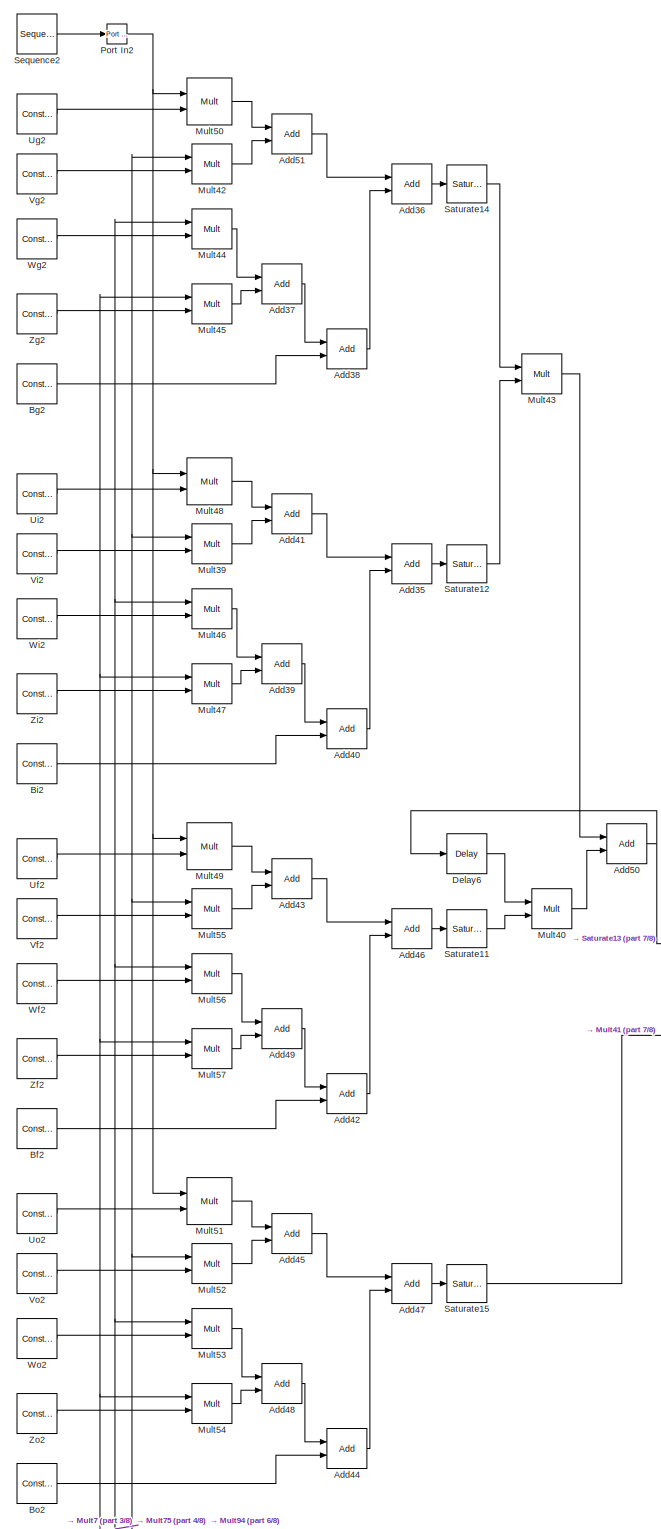
[diagram: root canvas - part 1/8, right side, full height]
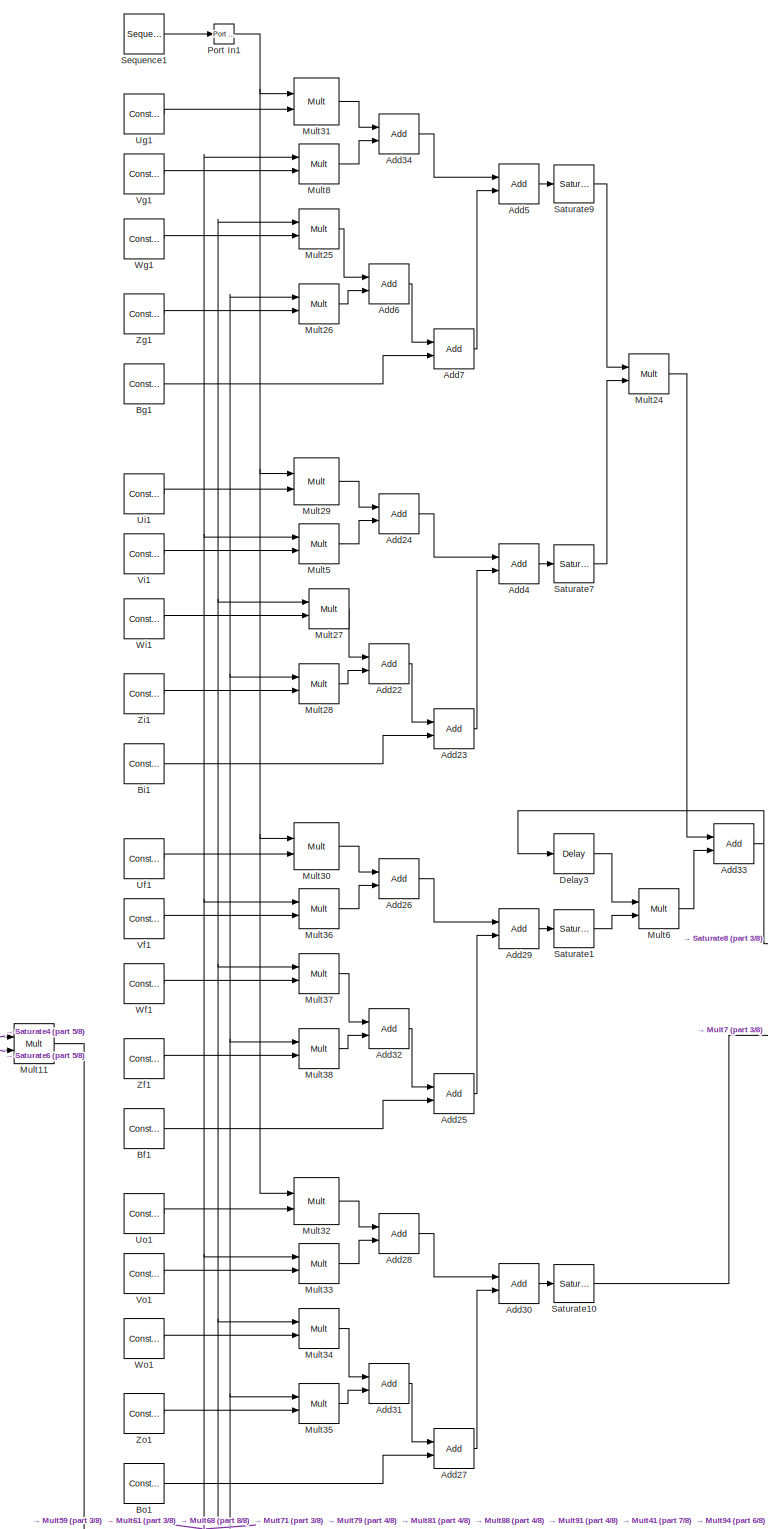
[diagram: root canvas - part 2/8, left side, full height]
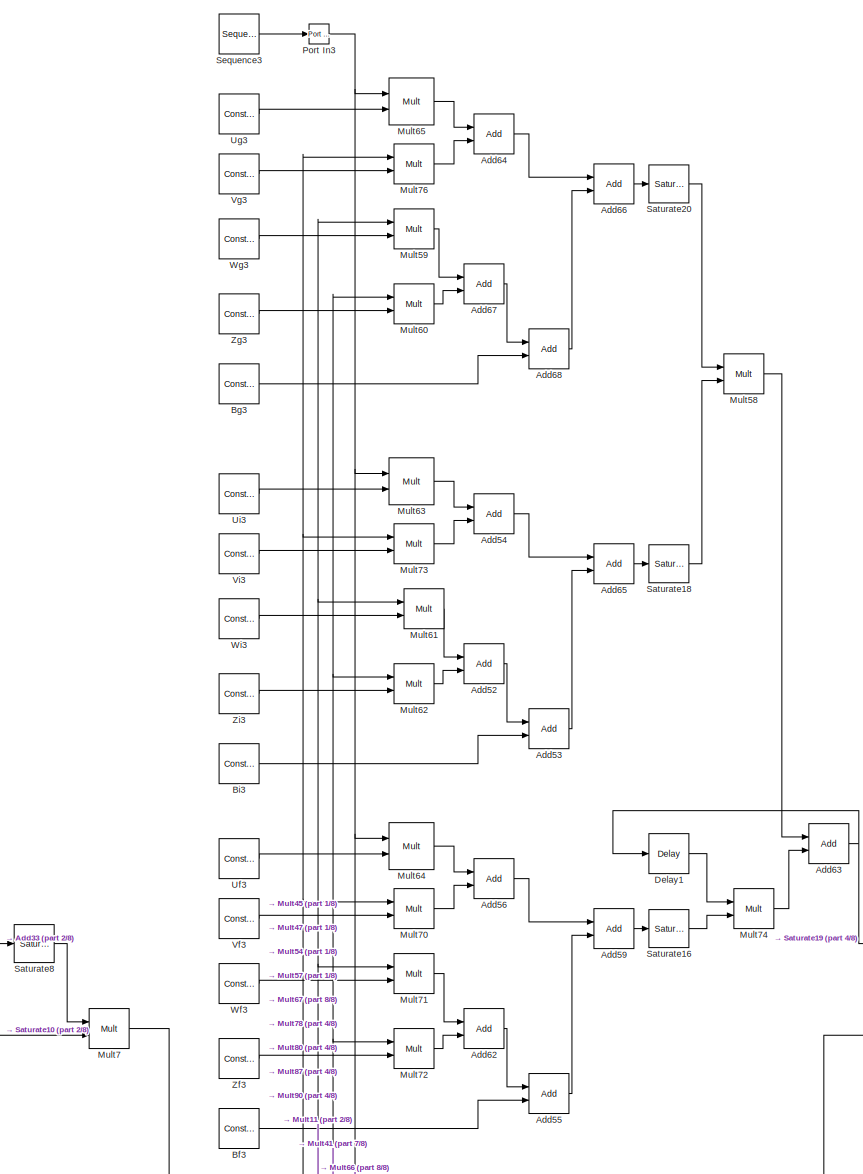
[diagram: root canvas - part 3/8, central region]
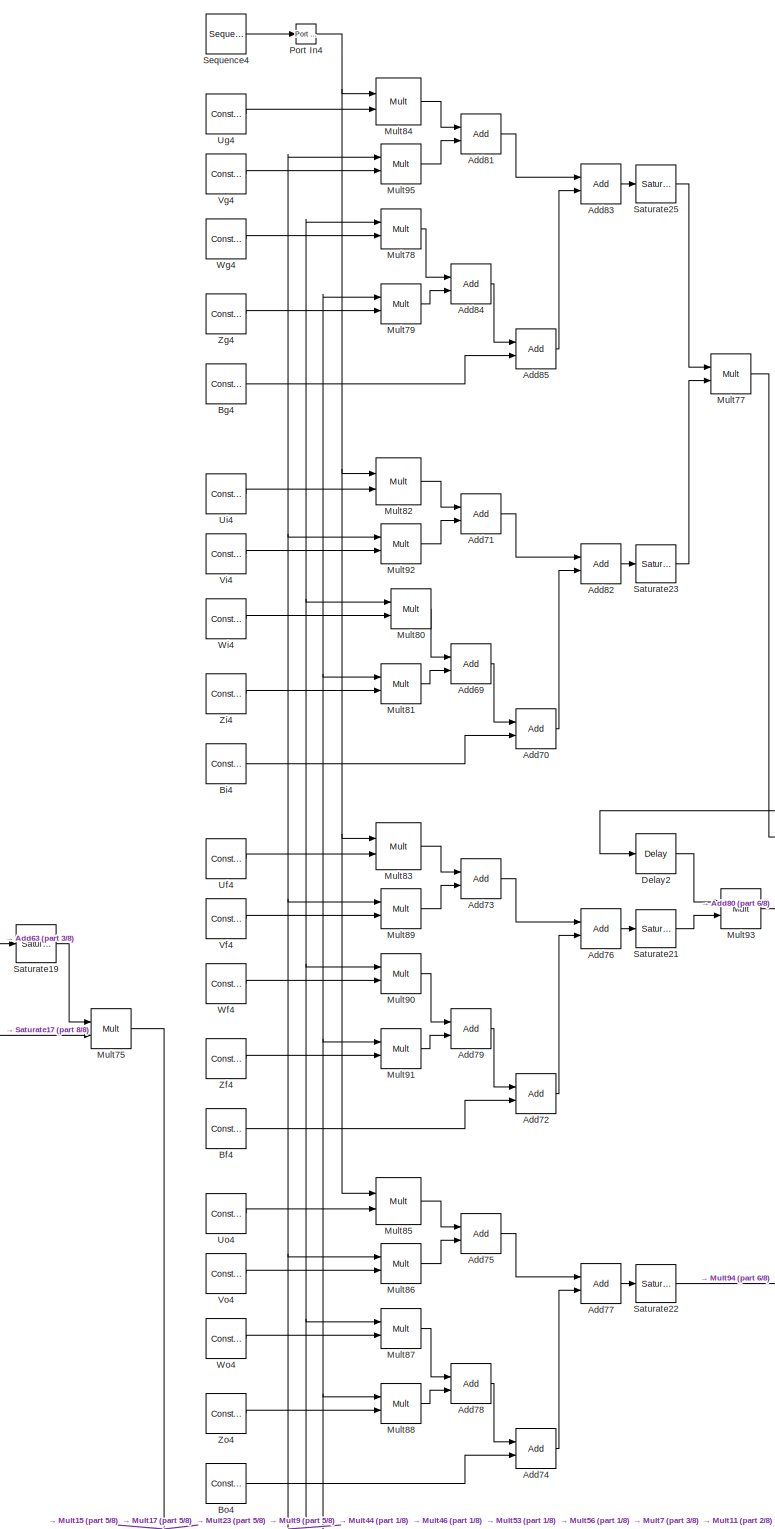
[diagram: root canvas - part 4/8, center side, full height]
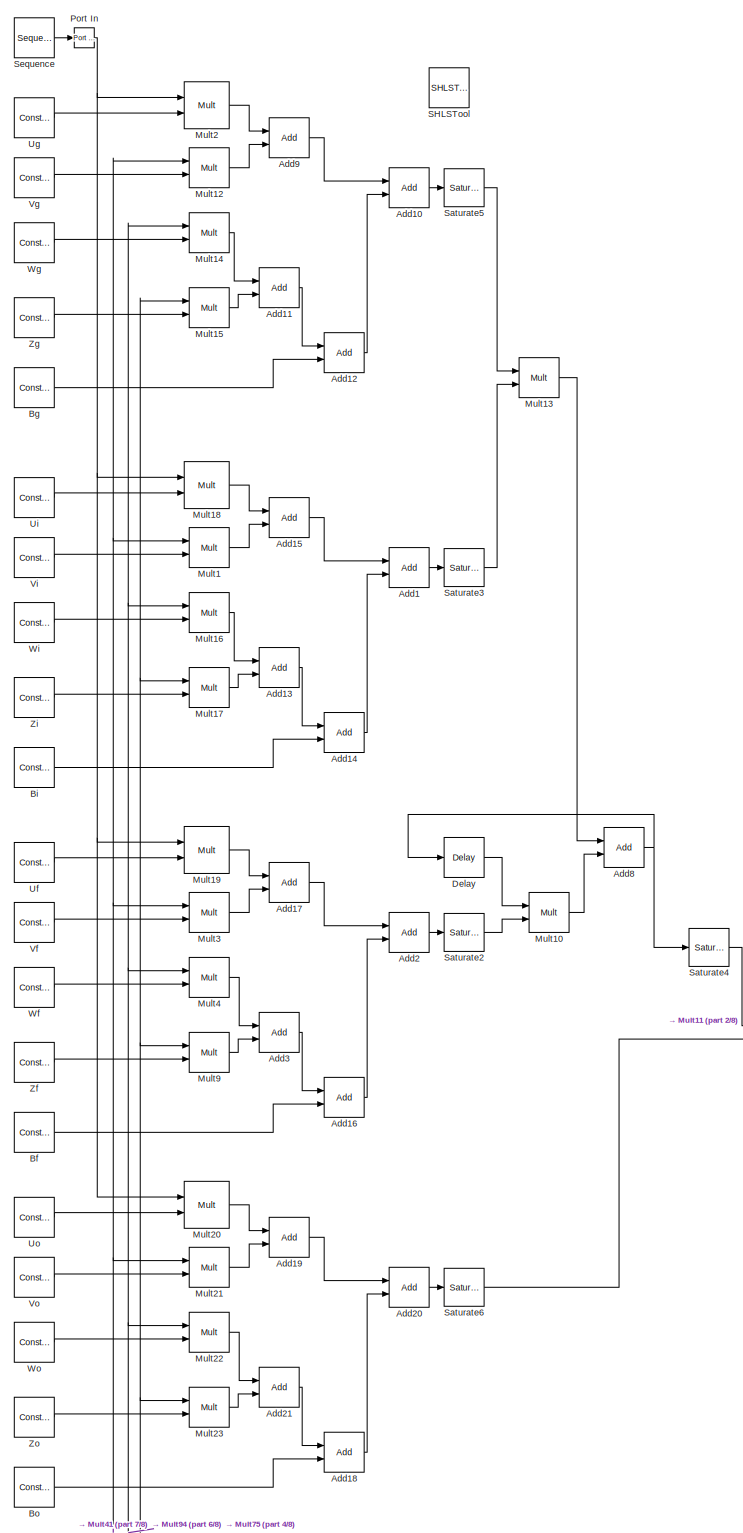
[diagram: root canvas - part 5/8, left side, full height]
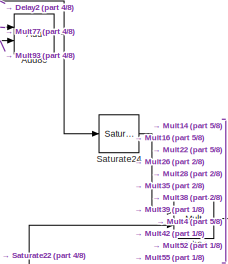
[diagram: root canvas - part 6/8, middle right region]
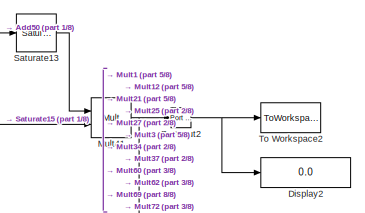
[diagram: root canvas - part 7/8, middle right region]
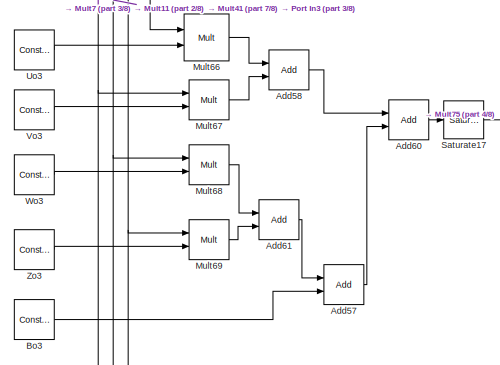
[diagram: root canvas - part 8/8, bottom center region]
MODEL slx_8cb31636eade
KIND model
CONFIG AbsTol = auto
CONFIG FixedStep = auto
CONFIG MaxStep = auto
CONFIG MinStep = auto
CONFIG RelTol = 1e-3
CONFIG SampleTimeConstraint = Unconstrained
CONFIG Solver = FixedStepDiscrete
CONFIG SolverMode = SingleTasking
CONFIG SolverName = FixedStepDiscrete
CONFIG StartTime = 0.0
CONFIG StopTime = 10.0
BLOCK [Reference] Add1  REF=shlslibv1/Math Functions/Add
  Ports = [2, 1]
  SourceBlock = shlslibv1/Math Functions/Add
  SourceType = Synphony Model Compiler Add
BLOCK [Reference] Add10  REF=shlslibv1/Math Functions/Add
  Ports = [2, 1]
  SourceBlock = shlslibv1/Math Functions/Add
  SourceType = Synphony Model Compiler Add
BLOCK [Reference] Add11  REF=shlslibv1/Math Functions/Add
  Ports = [2, 1]
  SourceBlock = shlslibv1/Math Functions/Add
  SourceType = Synphony Model Compiler Add
BLOCK [Reference] Add12  REF=shlslibv1/Math Functions/Add
  Ports = [2, 1]
  SourceBlock = shlslibv1/Math Functions/Add
  SourceType = Synphony Model Compiler Add
BLOCK [Reference] Add13  REF=shlslibv1/Math Functions/Add
  Ports = [2, 1]
  SourceBlock = shlslibv1/Math Functions/Add
  SourceType = Synphony Model Compiler Add
BLOCK [Reference] Add14  REF=shlslibv1/Math Functions/Add
  Ports = [2, 1]
  SourceBlock = shlslibv1/Math Functions/Add
  SourceType = Synphony Model Compiler Add
BLOCK [Reference] Add15  REF=shlslibv1/Math Functions/Add
  Ports = [2, 1]
  SourceBlock = shlslibv1/Math Functions/Add
  SourceType = Synphony Model Compiler Add
BLOCK [Reference] Add16  REF=shlslibv1/Math Functions/Add
  Ports = [2, 1]
  SourceBlock = shlslibv1/Math Functions/Add
  SourceType = Synphony Model Compiler Add
BLOCK [Reference] Add17  REF=shlslibv1/Math Functions/Add
  Ports = [2, 1]
  SourceBlock = shlslibv1/Math Functions/Add
  SourceType = Synphony Model Compiler Add
BLOCK [Reference] Add18  REF=shlslibv1/Math Functions/Add
  Ports = [2, 1]
  SourceBlock = shlslibv1/Math Functions/Add
  SourceType = Synphony Model Compiler Add
BLOCK [Reference] Add19  REF=shlslibv1/Math Functions/Add
  Ports = [2, 1]
  SourceBlock = shlslibv1/Math Functions/Add
  SourceType = Synphony Model Compiler Add
BLOCK [Reference] Add2  REF=shlslibv1/Math Functions/Add
  Ports = [2, 1]
  SourceBlock = shlslibv1/Math Functions/Add
  SourceType = Synphony Model Compiler Add
BLOCK [Reference] Add20  REF=shlslibv1/Math Functions/Add
  Ports = [2, 1]
  SourceBlock = shlslibv1/Math Functions/Add
  SourceType = Synphony Model Compiler Add
BLOCK [Reference] Add21  REF=shlslibv1/Math Functions/Add
  Ports = [2, 1]
  SourceBlock = shlslibv1/Math Functions/Add
  SourceType = Synphony Model Compiler Add
BLOCK [Reference] Add22  REF=shlslibv1/Math Functions/Add
  Ports = [2, 1]
  SourceBlock = shlslibv1/Math Functions/Add
  SourceType = Synphony Model Compiler Add
BLOCK [Reference] Add23  REF=shlslibv1/Math Functions/Add
  Ports = [2, 1]
  SourceBlock = shlslibv1/Math Functions/Add
  SourceType = Synphony Model Compiler Add
BLOCK [Reference] Add24  REF=shlslibv1/Math Functions/Add
  Ports = [2, 1]
  SourceBlock = shlslibv1/Math Functions/Add
  SourceType = Synphony Model Compiler Add
BLOCK [Reference] Add25  REF=shlslibv1/Math Functions/Add
  Ports = [2, 1]
  SourceBlock = shlslibv1/Math Functions/Add
  SourceType = Synphony Model Compiler Add
BLOCK [Reference] Add26  REF=shlslibv1/Math Functions/Add
  Ports = [2, 1]
  SourceBlock = shlslibv1/Math Functions/Add
  SourceType = Synphony Model Compiler Add
BLOCK [Reference] Add27  REF=shlslibv1/Math Functions/Add
  Ports = [2, 1]
  SourceBlock = shlslibv1/Math Functions/Add
  SourceType = Synphony Model Compiler Add
BLOCK [Reference] Add28  REF=shlslibv1/Math Functions/Add
  Ports = [2, 1]
  SourceBlock = shlslibv1/Math Functions/Add
  SourceType = Synphony Model Compiler Add
BLOCK [Reference] Add29  REF=shlslibv1/Math Functions/Add
  Ports = [2, 1]
  SourceBlock = shlslibv1/Math Functions/Add
  SourceType = Synphony Model Compiler Add
BLOCK [Reference] Add3  REF=shlslibv1/Math Functions/Add
  Ports = [2, 1]
  SourceBlock = shlslibv1/Math Functions/Add
  SourceType = Synphony Model Compiler Add
BLOCK [Reference] Add30  REF=shlslibv1/Math Functions/Add
  Ports = [2, 1]
  SourceBlock = shlslibv1/Math Functions/Add
  SourceType = Synphony Model Compiler Add
BLOCK [Reference] Add31  REF=shlslibv1/Math Functions/Add
  Ports = [2, 1]
  SourceBlock = shlslibv1/Math Functions/Add
  SourceType = Synphony Model Compiler Add
BLOCK [Reference] Add32  REF=shlslibv1/Math Functions/Add
  Ports = [2, 1]
  SourceBlock = shlslibv1/Math Functions/Add
  SourceType = Synphony Model Compiler Add
BLOCK [Reference] Add33  REF=shlslibv1/Math Functions/Add
  Ports = [2, 1]
  SourceBlock = shlslibv1/Math Functions/Add
  SourceType = Synphony Model Compiler Add
BLOCK [Reference] Add34  REF=shlslibv1/Math Functions/Add
  Ports = [2, 1]
  SourceBlock = shlslibv1/Math Functions/Add
  SourceType = Synphony Model Compiler Add
BLOCK [Reference] Add35  REF=shlslibv1/Math Functions/Add
  Ports = [2, 1]
  SourceBlock = shlslibv1/Math Functions/Add
  SourceType = Synphony Model Compiler Add
BLOCK [Reference] Add36  REF=shlslibv1/Math Functions/Add
  Ports = [2, 1]
  SourceBlock = shlslibv1/Math Functions/Add
  SourceType = Synphony Model Compiler Add
BLOCK [Reference] Add37  REF=shlslibv1/Math Functions/Add
  Ports = [2, 1]
  SourceBlock = shlslibv1/Math Functions/Add
  SourceType = Synphony Model Compiler Add
BLOCK [Reference] Add38  REF=shlslibv1/Math Functions/Add
  Ports = [2, 1]
  SourceBlock = shlslibv1/Math Functions/Add
  SourceType = Synphony Model Compiler Add
BLOCK [Reference] Add39  REF=shlslibv1/Math Functions/Add
  Ports = [2, 1]
  SourceBlock = shlslibv1/Math Functions/Add
  SourceType = Synphony Model Compiler Add
BLOCK [Reference] Add4  REF=shlslibv1/Math Functions/Add
  Ports = [2, 1]
  SourceBlock = shlslibv1/Math Functions/Add
  SourceType = Synphony Model Compiler Add
BLOCK [Reference] Add40  REF=shlslibv1/Math Functions/Add
  Ports = [2, 1]
  SourceBlock = shlslibv1/Math Functions/Add
  SourceType = Synphony Model Compiler Add
BLOCK [Reference] Add41  REF=shlslibv1/Math Functions/Add
  Ports = [2, 1]
  SourceBlock = shlslibv1/Math Functions/Add
  SourceType = Synphony Model Compiler Add
BLOCK [Reference] Add42  REF=shlslibv1/Math Functions/Add
  Ports = [2, 1]
  SourceBlock = shlslibv1/Math Functions/Add
  SourceType = Synphony Model Compiler Add
BLOCK [Reference] Add43  REF=shlslibv1/Math Functions/Add
  Ports = [2, 1]
  SourceBlock = shlslibv1/Math Functions/Add
  SourceType = Synphony Model Compiler Add
BLOCK [Reference] Add44  REF=shlslibv1/Math Functions/Add
  Ports = [2, 1]
  SourceBlock = shlslibv1/Math Functions/Add
  SourceType = Synphony Model Compiler Add
BLOCK [Reference] Add45  REF=shlslibv1/Math Functions/Add
  Ports = [2, 1]
  SourceBlock = shlslibv1/Math Functions/Add
  SourceType = Synphony Model Compiler Add
BLOCK [Reference] Add46  REF=shlslibv1/Math Functions/Add
  Ports = [2, 1]
  SourceBlock = shlslibv1/Math Functions/Add
  SourceType = Synphony Model Compiler Add
BLOCK [Reference] Add47  REF=shlslibv1/Math Functions/Add
  Ports = [2, 1]
  SourceBlock = shlslibv1/Math Functions/Add
  SourceType = Synphony Model Compiler Add
BLOCK [Reference] Add48  REF=shlslibv1/Math Functions/Add
  Ports = [2, 1]
  SourceBlock = shlslibv1/Math Functions/Add
  SourceType = Synphony Model Compiler Add
BLOCK [Reference] Add49  REF=shlslibv1/Math Functions/Add
  Ports = [2, 1]
  SourceBlock = shlslibv1/Math Functions/Add
  SourceType = Synphony Model Compiler Add
BLOCK [Reference] Add5  REF=shlslibv1/Math Functions/Add
  Ports = [2, 1]
  SourceBlock = shlslibv1/Math Functions/Add
  SourceType = Synphony Model Compiler Add
BLOCK [Reference] Add50  REF=shlslibv1/Math Functions/Add
  Ports = [2, 1]
  SourceBlock = shlslibv1/Math Functions/Add
  SourceType = Synphony Model Compiler Add
BLOCK [Reference] Add51  REF=shlslibv1/Math Functions/Add
  Ports = [2, 1]
  SourceBlock = shlslibv1/Math Functions/Add
  SourceType = Synphony Model Compiler Add
BLOCK [Reference] Add52  REF=shlslibv1/Math Functions/Add
  Ports = [2, 1]
  SourceBlock = shlslibv1/Math Functions/Add
  SourceType = Synphony Model Compiler Add
BLOCK [Reference] Add53  REF=shlslibv1/Math Functions/Add
  Ports = [2, 1]
  SourceBlock = shlslibv1/Math Functions/Add
  SourceType = Synphony Model Compiler Add
BLOCK [Reference] Add54  REF=shlslibv1/Math Functions/Add
  Ports = [2, 1]
  SourceBlock = shlslibv1/Math Functions/Add
  SourceType = Synphony Model Compiler Add
BLOCK [Reference] Add55  REF=shlslibv1/Math Functions/Add
  Ports = [2, 1]
  SourceBlock = shlslibv1/Math Functions/Add
  SourceType = Synphony Model Compiler Add
BLOCK [Reference] Add56  REF=shlslibv1/Math Functions/Add
  Ports = [2, 1]
  SourceBlock = shlslibv1/Math Functions/Add
  SourceType = Synphony Model Compiler Add
BLOCK [Reference] Add57  REF=shlslibv1/Math Functions/Add
  Ports = [2, 1]
  SourceBlock = shlslibv1/Math Functions/Add
  SourceType = Synphony Model Compiler Add
BLOCK [Reference] Add58  REF=shlslibv1/Math Functions/Add
  Ports = [2, 1]
  SourceBlock = shlslibv1/Math Functions/Add
  SourceType = Synphony Model Compiler Add
BLOCK [Reference] Add59  REF=shlslibv1/Math Functions/Add
  Ports = [2, 1]
  SourceBlock = shlslibv1/Math Functions/Add
  SourceType = Synphony Model Compiler Add
BLOCK [Reference] Add6  REF=shlslibv1/Math Functions/Add
  Ports = [2, 1]
  SourceBlock = shlslibv1/Math Functions/Add
  SourceType = Synphony Model Compiler Add
BLOCK [Reference] Add60  REF=shlslibv1/Math Functions/Add
  Ports = [2, 1]
  SourceBlock = shlslibv1/Math Functions/Add
  SourceType = Synphony Model Compiler Add
BLOCK [Reference] Add61  REF=shlslibv1/Math Functions/Add
  Ports = [2, 1]
  SourceBlock = shlslibv1/Math Functions/Add
  SourceType = Synphony Model Compiler Add
BLOCK [Reference] Add62  REF=shlslibv1/Math Functions/Add
  Ports = [2, 1]
  SourceBlock = shlslibv1/Math Functions/Add
  SourceType = Synphony Model Compiler Add
BLOCK [Reference] Add63  REF=shlslibv1/Math Functions/Add
  Ports = [2, 1]
  SourceBlock = shlslibv1/Math Functions/Add
  SourceType = Synphony Model Compiler Add
BLOCK [Reference] Add64  REF=shlslibv1/Math Functions/Add
  Ports = [2, 1]
  SourceBlock = shlslibv1/Math Functions/Add
  SourceType = Synphony Model Compiler Add
BLOCK [Reference] Add65  REF=shlslibv1/Math Functions/Add
  Ports = [2, 1]
  SourceBlock = shlslibv1/Math Functions/Add
  SourceType = Synphony Model Compiler Add
BLOCK [Reference] Add66  REF=shlslibv1/Math Functions/Add
  Ports = [2, 1]
  SourceBlock = shlslibv1/Math Functions/Add
  SourceType = Synphony Model Compiler Add
BLOCK [Reference] Add67  REF=shlslibv1/Math Functions/Add
  Ports = [2, 1]
  SourceBlock = shlslibv1/Math Functions/Add
  SourceType = Synphony Model Compiler Add
BLOCK [Reference] Add68  REF=shlslibv1/Math Functions/Add
  Ports = [2, 1]
  SourceBlock = shlslibv1/Math Functions/Add
  SourceType = Synphony Model Compiler Add
BLOCK [Reference] Add69  REF=shlslibv1/Math Functions/Add
  Ports = [2, 1]
  SourceBlock = shlslibv1/Math Functions/Add
  SourceType = Synphony Model Compiler Add
BLOCK [Reference] Add7  REF=shlslibv1/Math Functions/Add
  Ports = [2, 1]
  SourceBlock = shlslibv1/Math Functions/Add
  SourceType = Synphony Model Compiler Add
BLOCK [Reference] Add70  REF=shlslibv1/Math Functions/Add
  Ports = [2, 1]
  SourceBlock = shlslibv1/Math Functions/Add
  SourceType = Synphony Model Compiler Add
BLOCK [Reference] Add71  REF=shlslibv1/Math Functions/Add
  Ports = [2, 1]
  SourceBlock = shlslibv1/Math Functions/Add
  SourceType = Synphony Model Compiler Add
BLOCK [Reference] Add72  REF=shlslibv1/Math Functions/Add
  Ports = [2, 1]
  SourceBlock = shlslibv1/Math Functions/Add
  SourceType = Synphony Model Compiler Add
BLOCK [Reference] Add73  REF=shlslibv1/Math Functions/Add
  Ports = [2, 1]
  SourceBlock = shlslibv1/Math Functions/Add
  SourceType = Synphony Model Compiler Add
BLOCK [Reference] Add74  REF=shlslibv1/Math Functions/Add
  Ports = [2, 1]
  SourceBlock = shlslibv1/Math Functions/Add
  SourceType = Synphony Model Compiler Add
BLOCK [Reference] Add75  REF=shlslibv1/Math Functions/Add
  Ports = [2, 1]
  SourceBlock = shlslibv1/Math Functions/Add
  SourceType = Synphony Model Compiler Add
BLOCK [Reference] Add76  REF=shlslibv1/Math Functions/Add
  Ports = [2, 1]
  SourceBlock = shlslibv1/Math Functions/Add
  SourceType = Synphony Model Compiler Add
BLOCK [Reference] Add77  REF=shlslibv1/Math Functions/Add
  Ports = [2, 1]
  SourceBlock = shlslibv1/Math Functions/Add
  SourceType = Synphony Model Compiler Add
BLOCK [Reference] Add78  REF=shlslibv1/Math Functions/Add
  Ports = [2, 1]
  SourceBlock = shlslibv1/Math Functions/Add
  SourceType = Synphony Model Compiler Add
BLOCK [Reference] Add79  REF=shlslibv1/Math Functions/Add
  Ports = [2, 1]
  SourceBlock = shlslibv1/Math Functions/Add
  SourceType = Synphony Model Compiler Add
BLOCK [Reference] Add8  REF=shlslibv1/Math Functions/Add
  Ports = [2, 1]
  SourceBlock = shlslibv1/Math Functions/Add
  SourceType = Synphony Model Compiler Add
BLOCK [Reference] Add80  REF=shlslibv1/Math Functions/Add
  Ports = [2, 1]
  SourceBlock = shlslibv1/Math Functions/Add
  SourceType = Synphony Model Compiler Add
BLOCK [Reference] Add81  REF=shlslibv1/Math Functions/Add
  Ports = [2, 1]
  SourceBlock = shlslibv1/Math Functions/Add
  SourceType = Synphony Model Compiler Add
BLOCK [Reference] Add82  REF=shlslibv1/Math Functions/Add
  Ports = [2, 1]
  SourceBlock = shlslibv1/Math Functions/Add
  SourceType = Synphony Model Compiler Add
BLOCK [Reference] Add83  REF=shlslibv1/Math Functions/Add
  Ports = [2, 1]
  SourceBlock = shlslibv1/Math Functions/Add
  SourceType = Synphony Model Compiler Add
BLOCK [Reference] Add84  REF=shlslibv1/Math Functions/Add
  Ports = [2, 1]
  SourceBlock = shlslibv1/Math Functions/Add
  SourceType = Synphony Model Compiler Add
BLOCK [Reference] Add85  REF=shlslibv1/Math Functions/Add
  Ports = [2, 1]
  SourceBlock = shlslibv1/Math Functions/Add
  SourceType = Synphony Model Compiler Add
BLOCK [Reference] Add9  REF=shlslibv1/Math Functions/Add
  Ports = [2, 1]
  SourceBlock = shlslibv1/Math Functions/Add
  SourceType = Synphony Model Compiler Add
BLOCK [Reference] Bf  REF=shlslibv1/Sources/Constant
  Ports = [0, 1]
  SourceBlock = shlslibv1/Sources/Constant
  SourceType = Synphony Model Compiler Constant
BLOCK [Reference] Bf1  REF=shlslibv1/Sources/Constant
  Ports = [0, 1]
  SourceBlock = shlslibv1/Sources/Constant
  SourceType = Synphony Model Compiler Constant
BLOCK [Reference] Bf2  REF=shlslibv1/Sources/Constant
  Ports = [0, 1]
  SourceBlock = shlslibv1/Sources/Constant
  SourceType = Synphony Model Compiler Constant
BLOCK [Reference] Bf3  REF=shlslibv1/Sources/Constant
  Ports = [0, 1]
  SourceBlock = shlslibv1/Sources/Constant
  SourceType = Synphony Model Compiler Constant
BLOCK [Reference] Bf4  REF=shlslibv1/Sources/Constant
  Ports = [0, 1]
  SourceBlock = shlslibv1/Sources/Constant
  SourceType = Synphony Model Compiler Constant
BLOCK [Reference] Bg  REF=shlslibv1/Sources/Constant
  Ports = [0, 1]
  SourceBlock = shlslibv1/Sources/Constant
  SourceType = Synphony Model Compiler Constant
BLOCK [Reference] Bg1  REF=shlslibv1/Sources/Constant
  Ports = [0, 1]
  SourceBlock = shlslibv1/Sources/Constant
  SourceType = Synphony Model Compiler Constant
BLOCK [Reference] Bg2  REF=shlslibv1/Sources/Constant
  Ports = [0, 1]
  SourceBlock = shlslibv1/Sources/Constant
  SourceType = Synphony Model Compiler Constant
BLOCK [Reference] Bg3  REF=shlslibv1/Sources/Constant
  Ports = [0, 1]
  SourceBlock = shlslibv1/Sources/Constant
  SourceType = Synphony Model Compiler Constant
BLOCK [Reference] Bg4  REF=shlslibv1/Sources/Constant
  Ports = [0, 1]
  SourceBlock = shlslibv1/Sources/Constant
  SourceType = Synphony Model Compiler Constant
BLOCK [Reference] Bi  REF=shlslibv1/Sources/Constant
  Ports = [0, 1]
  SourceBlock = shlslibv1/Sources/Constant
  SourceType = Synphony Model Compiler Constant
BLOCK [Reference] Bi1  REF=shlslibv1/Sources/Constant
  Ports = [0, 1]
  SourceBlock = shlslibv1/Sources/Constant
  SourceType = Synphony Model Compiler Constant
BLOCK [Reference] Bi2  REF=shlslibv1/Sources/Constant
  Ports = [0, 1]
  SourceBlock = shlslibv1/Sources/Constant
  SourceType = Synphony Model Compiler Constant
BLOCK [Reference] Bi3  REF=shlslibv1/Sources/Constant
  Ports = [0, 1]
  SourceBlock = shlslibv1/Sources/Constant
  SourceType = Synphony Model Compiler Constant
BLOCK [Reference] Bi4  REF=shlslibv1/Sources/Constant
  Ports = [0, 1]
  SourceBlock = shlslibv1/Sources/Constant
  SourceType = Synphony Model Compiler Constant
BLOCK [Reference] Bo  REF=shlslibv1/Sources/Constant
  Ports = [0, 1]
  SourceBlock = shlslibv1/Sources/Constant
  SourceType = Synphony Model Compiler Constant
BLOCK [Reference] Bo1  REF=shlslibv1/Sources/Constant
  Ports = [0, 1]
  SourceBlock = shlslibv1/Sources/Constant
  SourceType = Synphony Model Compiler Constant
BLOCK [Reference] Bo2  REF=shlslibv1/Sources/Constant
  Ports = [0, 1]
  SourceBlock = shlslibv1/Sources/Constant
  SourceType = Synphony Model Compiler Constant
BLOCK [Reference] Bo3  REF=shlslibv1/Sources/Constant
  Ports = [0, 1]
  SourceBlock = shlslibv1/Sources/Constant
  SourceType = Synphony Model Compiler Constant
BLOCK [Reference] Bo4  REF=shlslibv1/Sources/Constant
  Ports = [0, 1]
  SourceBlock = shlslibv1/Sources/Constant
  SourceType = Synphony Model Compiler Constant
BLOCK [Reference] Delay  REF=shlslibv1/Memories/Delay
  Ports = [1, 1]
  SourceBlock = shlslibv1/Memories/Delay
  SourceType = Synphony Model Compiler Delay
BLOCK [Reference] Delay1  REF=shlslibv1/Memories/Delay
  Ports = [1, 1]
  SourceBlock = shlslibv1/Memories/Delay
  SourceType = Synphony Model Compiler Delay
BLOCK [Reference] Delay2  REF=shlslibv1/Memories/Delay
  Ports = [1, 1]
  SourceBlock = shlslibv1/Memories/Delay
  SourceType = Synphony Model Compiler Delay
BLOCK [Reference] Delay3  REF=shlslibv1/Memories/Delay
  Ports = [1, 1]
  SourceBlock = shlslibv1/Memories/Delay
  SourceType = Synphony Model Compiler Delay
BLOCK [Reference] Delay6  REF=shlslibv1/Memories/Delay
  Ports = [1, 1]
  SourceBlock = shlslibv1/Memories/Delay
  SourceType = Synphony Model Compiler Delay
BLOCK [Display] Display2
  Decimation = 1
  Ports = [1]
BLOCK [Reference] Mult1  REF=shlslibv1/Math Functions/Mult
  Ports = [2, 1]
  SourceBlock = shlslibv1/Math Functions/Mult
  SourceType = Synphony Model Compiler Mult
BLOCK [Reference] Mult10  REF=shlslibv1/Math Functions/Mult
  Ports = [2, 1]
  SourceBlock = shlslibv1/Math Functions/Mult
  SourceType = Synphony Model Compiler Mult
BLOCK [Reference] Mult11  REF=shlslibv1/Math Functions/Mult
  Ports = [2, 1]
  SourceBlock = shlslibv1/Math Functions/Mult
  SourceType = Synphony Model Compiler Mult
BLOCK [Reference] Mult12  REF=shlslibv1/Math Functions/Mult
  Ports = [2, 1]
  SourceBlock = shlslibv1/Math Functions/Mult
  SourceType = Synphony Model Compiler Mult
BLOCK [Reference] Mult13  REF=shlslibv1/Math Functions/Mult
  Ports = [2, 1]
  SourceBlock = shlslibv1/Math Functions/Mult
  SourceType = Synphony Model Compiler Mult
BLOCK [Reference] Mult14  REF=shlslibv1/Math Functions/Mult
  Ports = [2, 1]
  SourceBlock = shlslibv1/Math Functions/Mult
  SourceType = Synphony Model Compiler Mult
BLOCK [Reference] Mult15  REF=shlslibv1/Math Functions/Mult
  Ports = [2, 1]
  SourceBlock = shlslibv1/Math Functions/Mult
  SourceType = Synphony Model Compiler Mult
BLOCK [Reference] Mult16  REF=shlslibv1/Math Functions/Mult
  Ports = [2, 1]
  SourceBlock = shlslibv1/Math Functions/Mult
  SourceType = Synphony Model Compiler Mult
BLOCK [Reference] Mult17  REF=shlslibv1/Math Functions/Mult
  Ports = [2, 1]
  SourceBlock = shlslibv1/Math Functions/Mult
  SourceType = Synphony Model Compiler Mult
BLOCK [Reference] Mult18  REF=shlslibv1/Math Functions/Mult
  Ports = [2, 1]
  SourceBlock = shlslibv1/Math Functions/Mult
  SourceType = Synphony Model Compiler Mult
BLOCK [Reference] Mult19  REF=shlslibv1/Math Functions/Mult
  Ports = [2, 1]
  SourceBlock = shlslibv1/Math Functions/Mult
  SourceType = Synphony Model Compiler Mult
BLOCK [Reference] Mult2  REF=shlslibv1/Math Functions/Mult
  Ports = [2, 1]
  SourceBlock = shlslibv1/Math Functions/Mult
  SourceType = Synphony Model Compiler Mult
BLOCK [Reference] Mult20  REF=shlslibv1/Math Functions/Mult
  Ports = [2, 1]
  SourceBlock = shlslibv1/Math Functions/Mult
  SourceType = Synphony Model Compiler Mult
BLOCK [Reference] Mult21  REF=shlslibv1/Math Functions/Mult
  Ports = [2, 1]
  SourceBlock = shlslibv1/Math Functions/Mult
  SourceType = Synphony Model Compiler Mult
BLOCK [Reference] Mult22  REF=shlslibv1/Math Functions/Mult
  Ports = [2, 1]
  SourceBlock = shlslibv1/Math Functions/Mult
  SourceType = Synphony Model Compiler Mult
BLOCK [Reference] Mult23  REF=shlslibv1/Math Functions/Mult
  Ports = [2, 1]
  SourceBlock = shlslibv1/Math Functions/Mult
  SourceType = Synphony Model Compiler Mult
BLOCK [Reference] Mult24  REF=shlslibv1/Math Functions/Mult
  Ports = [2, 1]
  SourceBlock = shlslibv1/Math Functions/Mult
  SourceType = Synphony Model Compiler Mult
BLOCK [Reference] Mult25  REF=shlslibv1/Math Functions/Mult
  Ports = [2, 1]
  SourceBlock = shlslibv1/Math Functions/Mult
  SourceType = Synphony Model Compiler Mult
BLOCK [Reference] Mult26  REF=shlslibv1/Math Functions/Mult
  Ports = [2, 1]
  SourceBlock = shlslibv1/Math Functions/Mult
  SourceType = Synphony Model Compiler Mult
BLOCK [Reference] Mult27  REF=shlslibv1/Math Functions/Mult
  Ports = [2, 1]
  SourceBlock = shlslibv1/Math Functions/Mult
  SourceType = Synphony Model Compiler Mult
BLOCK [Reference] Mult28  REF=shlslibv1/Math Functions/Mult
  Ports = [2, 1]
  SourceBlock = shlslibv1/Math Functions/Mult
  SourceType = Synphony Model Compiler Mult
BLOCK [Reference] Mult29  REF=shlslibv1/Math Functions/Mult
  Ports = [2, 1]
  SourceBlock = shlslibv1/Math Functions/Mult
  SourceType = Synphony Model Compiler Mult
BLOCK [Reference] Mult3  REF=shlslibv1/Math Functions/Mult
  Ports = [2, 1]
  SourceBlock = shlslibv1/Math Functions/Mult
  SourceType = Synphony Model Compiler Mult
BLOCK [Reference] Mult30  REF=shlslibv1/Math Functions/Mult
  Ports = [2, 1]
  SourceBlock = shlslibv1/Math Functions/Mult
  SourceType = Synphony Model Compiler Mult
BLOCK [Reference] Mult31  REF=shlslibv1/Math Functions/Mult
  Ports = [2, 1]
  SourceBlock = shlslibv1/Math Functions/Mult
  SourceType = Synphony Model Compiler Mult
BLOCK [Reference] Mult32  REF=shlslibv1/Math Functions/Mult
  Ports = [2, 1]
  SourceBlock = shlslibv1/Math Functions/Mult
  SourceType = Synphony Model Compiler Mult
BLOCK [Reference] Mult33  REF=shlslibv1/Math Functions/Mult
  Ports = [2, 1]
  SourceBlock = shlslibv1/Math Functions/Mult
  SourceType = Synphony Model Compiler Mult
BLOCK [Reference] Mult34  REF=shlslibv1/Math Functions/Mult
  Ports = [2, 1]
  SourceBlock = shlslibv1/Math Functions/Mult
  SourceType = Synphony Model Compiler Mult
BLOCK [Reference] Mult35  REF=shlslibv1/Math Functions/Mult
  Ports = [2, 1]
  SourceBlock = shlslibv1/Math Functions/Mult
  SourceType = Synphony Model Compiler Mult
BLOCK [Reference] Mult36  REF=shlslibv1/Math Functions/Mult
  Ports = [2, 1]
  SourceBlock = shlslibv1/Math Functions/Mult
  SourceType = Synphony Model Compiler Mult
BLOCK [Reference] Mult37  REF=shlslibv1/Math Functions/Mult
  Ports = [2, 1]
  SourceBlock = shlslibv1/Math Functions/Mult
  SourceType = Synphony Model Compiler Mult
BLOCK [Reference] Mult38  REF=shlslibv1/Math Functions/Mult
  Ports = [2, 1]
  SourceBlock = shlslibv1/Math Functions/Mult
  SourceType = Synphony Model Compiler Mult
BLOCK [Reference] Mult39  REF=shlslibv1/Math Functions/Mult
  Ports = [2, 1]
  SourceBlock = shlslibv1/Math Functions/Mult
  SourceType = Synphony Model Compiler Mult
BLOCK [Reference] Mult4  REF=shlslibv1/Math Functions/Mult
  Ports = [2, 1]
  SourceBlock = shlslibv1/Math Functions/Mult
  SourceType = Synphony Model Compiler Mult
BLOCK [Reference] Mult40  REF=shlslibv1/Math Functions/Mult
  Ports = [2, 1]
  SourceBlock = shlslibv1/Math Functions/Mult
  SourceType = Synphony Model Compiler Mult
BLOCK [Reference] Mult41  REF=shlslibv1/Math Functions/Mult
  Ports = [2, 1]
  SourceBlock = shlslibv1/Math Functions/Mult
  SourceType = Synphony Model Compiler Mult
BLOCK [Reference] Mult42  REF=shlslibv1/Math Functions/Mult
  Ports = [2, 1]
  SourceBlock = shlslibv1/Math Functions/Mult
  SourceType = Synphony Model Compiler Mult
BLOCK [Reference] Mult43  REF=shlslibv1/Math Functions/Mult
  Ports = [2, 1]
  SourceBlock = shlslibv1/Math Functions/Mult
  SourceType = Synphony Model Compiler Mult
BLOCK [Reference] Mult44  REF=shlslibv1/Math Functions/Mult
  Ports = [2, 1]
  SourceBlock = shlslibv1/Math Functions/Mult
  SourceType = Synphony Model Compiler Mult
BLOCK [Reference] Mult45  REF=shlslibv1/Math Functions/Mult
  Ports = [2, 1]
  SourceBlock = shlslibv1/Math Functions/Mult
  SourceType = Synphony Model Compiler Mult
BLOCK [Reference] Mult46  REF=shlslibv1/Math Functions/Mult
  Ports = [2, 1]
  SourceBlock = shlslibv1/Math Functions/Mult
  SourceType = Synphony Model Compiler Mult
BLOCK [Reference] Mult47  REF=shlslibv1/Math Functions/Mult
  Ports = [2, 1]
  SourceBlock = shlslibv1/Math Functions/Mult
  SourceType = Synphony Model Compiler Mult
BLOCK [Reference] Mult48  REF=shlslibv1/Math Functions/Mult
  Ports = [2, 1]
  SourceBlock = shlslibv1/Math Functions/Mult
  SourceType = Synphony Model Compiler Mult
BLOCK [Reference] Mult49  REF=shlslibv1/Math Functions/Mult
  Ports = [2, 1]
  SourceBlock = shlslibv1/Math Functions/Mult
  SourceType = Synphony Model Compiler Mult
BLOCK [Reference] Mult5  REF=shlslibv1/Math Functions/Mult
  Ports = [2, 1]
  SourceBlock = shlslibv1/Math Functions/Mult
  SourceType = Synphony Model Compiler Mult
BLOCK [Reference] Mult50  REF=shlslibv1/Math Functions/Mult
  Ports = [2, 1]
  SourceBlock = shlslibv1/Math Functions/Mult
  SourceType = Synphony Model Compiler Mult
BLOCK [Reference] Mult51  REF=shlslibv1/Math Functions/Mult
  Ports = [2, 1]
  SourceBlock = shlslibv1/Math Functions/Mult
  SourceType = Synphony Model Compiler Mult
BLOCK [Reference] Mult52  REF=shlslibv1/Math Functions/Mult
  Ports = [2, 1]
  SourceBlock = shlslibv1/Math Functions/Mult
  SourceType = Synphony Model Compiler Mult
BLOCK [Reference] Mult53  REF=shlslibv1/Math Functions/Mult
  Ports = [2, 1]
  SourceBlock = shlslibv1/Math Functions/Mult
  SourceType = Synphony Model Compiler Mult
BLOCK [Reference] Mult54  REF=shlslibv1/Math Functions/Mult
  Ports = [2, 1]
  SourceBlock = shlslibv1/Math Functions/Mult
  SourceType = Synphony Model Compiler Mult
BLOCK [Reference] Mult55  REF=shlslibv1/Math Functions/Mult
  Ports = [2, 1]
  SourceBlock = shlslibv1/Math Functions/Mult
  SourceType = Synphony Model Compiler Mult
BLOCK [Reference] Mult56  REF=shlslibv1/Math Functions/Mult
  Ports = [2, 1]
  SourceBlock = shlslibv1/Math Functions/Mult
  SourceType = Synphony Model Compiler Mult
BLOCK [Reference] Mult57  REF=shlslibv1/Math Functions/Mult
  Ports = [2, 1]
  SourceBlock = shlslibv1/Math Functions/Mult
  SourceType = Synphony Model Compiler Mult
BLOCK [Reference] Mult58  REF=shlslibv1/Math Functions/Mult
  Ports = [2, 1]
  SourceBlock = shlslibv1/Math Functions/Mult
  SourceType = Synphony Model Compiler Mult
BLOCK [Reference] Mult59  REF=shlslibv1/Math Functions/Mult
  Ports = [2, 1]
  SourceBlock = shlslibv1/Math Functions/Mult
  SourceType = Synphony Model Compiler Mult
BLOCK [Reference] Mult6  REF=shlslibv1/Math Functions/Mult
  Ports = [2, 1]
  SourceBlock = shlslibv1/Math Functions/Mult
  SourceType = Synphony Model Compiler Mult
BLOCK [Reference] Mult60  REF=shlslibv1/Math Functions/Mult
  Ports = [2, 1]
  SourceBlock = shlslibv1/Math Functions/Mult
  SourceType = Synphony Model Compiler Mult
BLOCK [Reference] Mult61  REF=shlslibv1/Math Functions/Mult
  Ports = [2, 1]
  SourceBlock = shlslibv1/Math Functions/Mult
  SourceType = Synphony Model Compiler Mult
BLOCK [Reference] Mult62  REF=shlslibv1/Math Functions/Mult
  Ports = [2, 1]
  SourceBlock = shlslibv1/Math Functions/Mult
  SourceType = Synphony Model Compiler Mult
BLOCK [Reference] Mult63  REF=shlslibv1/Math Functions/Mult
  Ports = [2, 1]
  SourceBlock = shlslibv1/Math Functions/Mult
  SourceType = Synphony Model Compiler Mult
BLOCK [Reference] Mult64  REF=shlslibv1/Math Functions/Mult
  Ports = [2, 1]
  SourceBlock = shlslibv1/Math Functions/Mult
  SourceType = Synphony Model Compiler Mult
BLOCK [Reference] Mult65  REF=shlslibv1/Math Functions/Mult
  Ports = [2, 1]
  SourceBlock = shlslibv1/Math Functions/Mult
  SourceType = Synphony Model Compiler Mult
BLOCK [Reference] Mult66  REF=shlslibv1/Math Functions/Mult
  Ports = [2, 1]
  SourceBlock = shlslibv1/Math Functions/Mult
  SourceType = Synphony Model Compiler Mult
BLOCK [Reference] Mult67  REF=shlslibv1/Math Functions/Mult
  Ports = [2, 1]
  SourceBlock = shlslibv1/Math Functions/Mult
  SourceType = Synphony Model Compiler Mult
BLOCK [Reference] Mult68  REF=shlslibv1/Math Functions/Mult
  Ports = [2, 1]
  SourceBlock = shlslibv1/Math Functions/Mult
  SourceType = Synphony Model Compiler Mult
BLOCK [Reference] Mult69  REF=shlslibv1/Math Functions/Mult
  Ports = [2, 1]
  SourceBlock = shlslibv1/Math Functions/Mult
  SourceType = Synphony Model Compiler Mult
BLOCK [Reference] Mult7  REF=shlslibv1/Math Functions/Mult
  Ports = [2, 1]
  SourceBlock = shlslibv1/Math Functions/Mult
  SourceType = Synphony Model Compiler Mult
BLOCK [Reference] Mult70  REF=shlslibv1/Math Functions/Mult
  Ports = [2, 1]
  SourceBlock = shlslibv1/Math Functions/Mult
  SourceType = Synphony Model Compiler Mult
BLOCK [Reference] Mult71  REF=shlslibv1/Math Functions/Mult
  Ports = [2, 1]
  SourceBlock = shlslibv1/Math Functions/Mult
  SourceType = Synphony Model Compiler Mult
BLOCK [Reference] Mult72  REF=shlslibv1/Math Functions/Mult
  Ports = [2, 1]
  SourceBlock = shlslibv1/Math Functions/Mult
  SourceType = Synphony Model Compiler Mult
BLOCK [Reference] Mult73  REF=shlslibv1/Math Functions/Mult
  Ports = [2, 1]
  SourceBlock = shlslibv1/Math Functions/Mult
  SourceType = Synphony Model Compiler Mult
BLOCK [Reference] Mult74  REF=shlslibv1/Math Functions/Mult
  Ports = [2, 1]
  SourceBlock = shlslibv1/Math Functions/Mult
  SourceType = Synphony Model Compiler Mult
BLOCK [Reference] Mult75  REF=shlslibv1/Math Functions/Mult
  Ports = [2, 1]
  SourceBlock = shlslibv1/Math Functions/Mult
  SourceType = Synphony Model Compiler Mult
BLOCK [Reference] Mult76  REF=shlslibv1/Math Functions/Mult
  Ports = [2, 1]
  SourceBlock = shlslibv1/Math Functions/Mult
  SourceType = Synphony Model Compiler Mult
BLOCK [Reference] Mult77  REF=shlslibv1/Math Functions/Mult
  Ports = [2, 1]
  SourceBlock = shlslibv1/Math Functions/Mult
  SourceType = Synphony Model Compiler Mult
BLOCK [Reference] Mult78  REF=shlslibv1/Math Functions/Mult
  Ports = [2, 1]
  SourceBlock = shlslibv1/Math Functions/Mult
  SourceType = Synphony Model Compiler Mult
BLOCK [Reference] Mult79  REF=shlslibv1/Math Functions/Mult
  Ports = [2, 1]
  SourceBlock = shlslibv1/Math Functions/Mult
  SourceType = Synphony Model Compiler Mult
BLOCK [Reference] Mult8  REF=shlslibv1/Math Functions/Mult
  Ports = [2, 1]
  SourceBlock = shlslibv1/Math Functions/Mult
  SourceType = Synphony Model Compiler Mult
BLOCK [Reference] Mult80  REF=shlslibv1/Math Functions/Mult
  Ports = [2, 1]
  SourceBlock = shlslibv1/Math Functions/Mult
  SourceType = Synphony Model Compiler Mult
BLOCK [Reference] Mult81  REF=shlslibv1/Math Functions/Mult
  Ports = [2, 1]
  SourceBlock = shlslibv1/Math Functions/Mult
  SourceType = Synphony Model Compiler Mult
BLOCK [Reference] Mult82  REF=shlslibv1/Math Functions/Mult
  Ports = [2, 1]
  SourceBlock = shlslibv1/Math Functions/Mult
  SourceType = Synphony Model Compiler Mult
BLOCK [Reference] Mult83  REF=shlslibv1/Math Functions/Mult
  Ports = [2, 1]
  SourceBlock = shlslibv1/Math Functions/Mult
  SourceType = Synphony Model Compiler Mult
BLOCK [Reference] Mult84  REF=shlslibv1/Math Functions/Mult
  Ports = [2, 1]
  SourceBlock = shlslibv1/Math Functions/Mult
  SourceType = Synphony Model Compiler Mult
BLOCK [Reference] Mult85  REF=shlslibv1/Math Functions/Mult
  Ports = [2, 1]
  SourceBlock = shlslibv1/Math Functions/Mult
  SourceType = Synphony Model Compiler Mult
BLOCK [Reference] Mult86  REF=shlslibv1/Math Functions/Mult
  Ports = [2, 1]
  SourceBlock = shlslibv1/Math Functions/Mult
  SourceType = Synphony Model Compiler Mult
BLOCK [Reference] Mult87  REF=shlslibv1/Math Functions/Mult
  Ports = [2, 1]
  SourceBlock = shlslibv1/Math Functions/Mult
  SourceType = Synphony Model Compiler Mult
BLOCK [Reference] Mult88  REF=shlslibv1/Math Functions/Mult
  Ports = [2, 1]
  SourceBlock = shlslibv1/Math Functions/Mult
  SourceType = Synphony Model Compiler Mult
BLOCK [Reference] Mult89  REF=shlslibv1/Math Functions/Mult
  Ports = [2, 1]
  SourceBlock = shlslibv1/Math Functions/Mult
  SourceType = Synphony Model Compiler Mult
BLOCK [Reference] Mult9  REF=shlslibv1/Math Functions/Mult
  Ports = [2, 1]
  SourceBlock = shlslibv1/Math Functions/Mult
  SourceType = Synphony Model Compiler Mult
BLOCK [Reference] Mult90  REF=shlslibv1/Math Functions/Mult
  Ports = [2, 1]
  SourceBlock = shlslibv1/Math Functions/Mult
  SourceType = Synphony Model Compiler Mult
BLOCK [Reference] Mult91  REF=shlslibv1/Math Functions/Mult
  Ports = [2, 1]
  SourceBlock = shlslibv1/Math Functions/Mult
  SourceType = Synphony Model Compiler Mult
BLOCK [Reference] Mult92  REF=shlslibv1/Math Functions/Mult
  Ports = [2, 1]
  SourceBlock = shlslibv1/Math Functions/Mult
  SourceType = Synphony Model Compiler Mult
BLOCK [Reference] Mult93  REF=shlslibv1/Math Functions/Mult
  Ports = [2, 1]
  SourceBlock = shlslibv1/Math Functions/Mult
  SourceType = Synphony Model Compiler Mult
BLOCK [Reference] Mult94  REF=shlslibv1/Math Functions/Mult
  Ports = [2, 1]
  SourceBlock = shlslibv1/Math Functions/Mult
  SourceType = Synphony Model Compiler Mult
BLOCK [Reference] Mult95  REF=shlslibv1/Math Functions/Mult
  Ports = [2, 1]
  SourceBlock = shlslibv1/Math Functions/Mult
  SourceType = Synphony Model Compiler Mult
BLOCK [Reference] Port In  REF=shlslibv1/Ports & Subsystems/Port In
  Ports = [1, 1]
  SourceBlock = shlslibv1/Ports & Subsystems/Port In
  SourceType = Synphony Model Compiler Port In
BLOCK [Reference] Port In1  REF=shlslibv1/Ports & Subsystems/Port In
  Ports = [1, 1]
  SourceBlock = shlslibv1/Ports & Subsystems/Port In
  SourceType = Synphony Model Compiler Port In
BLOCK [Reference] Port In2  REF=shlslibv1/Ports & Subsystems/Port In
  Ports = [1, 1]
  SourceBlock = shlslibv1/Ports & Subsystems/Port In
  SourceType = Synphony Model Compiler Port In
BLOCK [Reference] Port In3  REF=shlslibv1/Ports & Subsystems/Port In
  Ports = [1, 1]
  SourceBlock = shlslibv1/Ports & Subsystems/Port In
  SourceType = Synphony Model Compiler Port In
BLOCK [Reference] Port In4  REF=shlslibv1/Ports & Subsystems/Port In
  Ports = [1, 1]
  SourceBlock = shlslibv1/Ports & Subsystems/Port In
  SourceType = Synphony Model Compiler Port In
BLOCK [Reference] Port Out2  REF=shlslibv1/Ports & Subsystems/Port Out
  Ports = [1, 1]
  SourceBlock = shlslibv1/Ports & Subsystems/Port Out
  SourceType = Synphony Model Compiler Port Out
BLOCK [Reference] SHLSTool  REF=shlslibv1/SHLSTool
  Ports = []
  SourceBlock = shlslibv1/SHLSTool
  SourceType = Synphony HLS Toolbox
BLOCK [Reference] Saturate1  REF=shlslibv1/Signal Operations/Saturate
  Ports = [1, 1]
  SourceBlock = shlslibv1/Signal Operations/Saturate
  SourceType = Synphony Model Compiler Saturate
BLOCK [Reference] Saturate10  REF=shlslibv1/Signal Operations/Saturate
  Ports = [1, 1]
  SourceBlock = shlslibv1/Signal Operations/Saturate
  SourceType = Synphony Model Compiler Saturate
BLOCK [Reference] Saturate11  REF=shlslibv1/Signal Operations/Saturate
  Ports = [1, 1]
  SourceBlock = shlslibv1/Signal Operations/Saturate
  SourceType = Synphony Model Compiler Saturate
BLOCK [Reference] Saturate12  REF=shlslibv1/Signal Operations/Saturate
  Ports = [1, 1]
  SourceBlock = shlslibv1/Signal Operations/Saturate
  SourceType = Synphony Model Compiler Saturate
BLOCK [Reference] Saturate13  REF=shlslibv1/Signal Operations/Saturate
  Ports = [1, 1]
  SourceBlock = shlslibv1/Signal Operations/Saturate
  SourceType = Synphony Model Compiler Saturate
BLOCK [Reference] Saturate14  REF=shlslibv1/Signal Operations/Saturate
  Ports = [1, 1]
  SourceBlock = shlslibv1/Signal Operations/Saturate
  SourceType = Synphony Model Compiler Saturate
BLOCK [Reference] Saturate15  REF=shlslibv1/Signal Operations/Saturate
  Ports = [1, 1]
  SourceBlock = shlslibv1/Signal Operations/Saturate
  SourceType = Synphony Model Compiler Saturate
BLOCK [Reference] Saturate16  REF=shlslibv1/Signal Operations/Saturate
  Ports = [1, 1]
  SourceBlock = shlslibv1/Signal Operations/Saturate
  SourceType = Synphony Model Compiler Saturate
BLOCK [Reference] Saturate17  REF=shlslibv1/Signal Operations/Saturate
  Ports = [1, 1]
  SourceBlock = shlslibv1/Signal Operations/Saturate
  SourceType = Synphony Model Compiler Saturate
BLOCK [Reference] Saturate18  REF=shlslibv1/Signal Operations/Saturate
  Ports = [1, 1]
  SourceBlock = shlslibv1/Signal Operations/Saturate
  SourceType = Synphony Model Compiler Saturate
BLOCK [Reference] Saturate19  REF=shlslibv1/Signal Operations/Saturate
  Ports = [1, 1]
  SourceBlock = shlslibv1/Signal Operations/Saturate
  SourceType = Synphony Model Compiler Saturate
BLOCK [Reference] Saturate2  REF=shlslibv1/Signal Operations/Saturate
  Ports = [1, 1]
  SourceBlock = shlslibv1/Signal Operations/Saturate
  SourceType = Synphony Model Compiler Saturate
BLOCK [Reference] Saturate20  REF=shlslibv1/Signal Operations/Saturate
  Ports = [1, 1]
  SourceBlock = shlslibv1/Signal Operations/Saturate
  SourceType = Synphony Model Compiler Saturate
BLOCK [Reference] Saturate21  REF=shlslibv1/Signal Operations/Saturate
  Ports = [1, 1]
  SourceBlock = shlslibv1/Signal Operations/Saturate
  SourceType = Synphony Model Compiler Saturate
BLOCK [Reference] Saturate22  REF=shlslibv1/Signal Operations/Saturate
  Ports = [1, 1]
  SourceBlock = shlslibv1/Signal Operations/Saturate
  SourceType = Synphony Model Compiler Saturate
BLOCK [Reference] Saturate23  REF=shlslibv1/Signal Operations/Saturate
  Ports = [1, 1]
  SourceBlock = shlslibv1/Signal Operations/Saturate
  SourceType = Synphony Model Compiler Saturate
BLOCK [Reference] Saturate24  REF=shlslibv1/Signal Operations/Saturate
  Ports = [1, 1]
  SourceBlock = shlslibv1/Signal Operations/Saturate
  SourceType = Synphony Model Compiler Saturate
BLOCK [Reference] Saturate25  REF=shlslibv1/Signal Operations/Saturate
  Ports = [1, 1]
  SourceBlock = shlslibv1/Signal Operations/Saturate
  SourceType = Synphony Model Compiler Saturate
BLOCK [Reference] Saturate3  REF=shlslibv1/Signal Operations/Saturate
  Ports = [1, 1]
  SourceBlock = shlslibv1/Signal Operations/Saturate
  SourceType = Synphony Model Compiler Saturate
BLOCK [Reference] Saturate4  REF=shlslibv1/Signal Operations/Saturate
  Ports = [1, 1]
  SourceBlock = shlslibv1/Signal Operations/Saturate
  SourceType = Synphony Model Compiler Saturate
BLOCK [Reference] Saturate5  REF=shlslibv1/Signal Operations/Saturate
  Ports = [1, 1]
  SourceBlock = shlslibv1/Signal Operations/Saturate
  SourceType = Synphony Model Compiler Saturate
BLOCK [Reference] Saturate6  REF=shlslibv1/Signal Operations/Saturate
  Ports = [1, 1]
  SourceBlock = shlslibv1/Signal Operations/Saturate
  SourceType = Synphony Model Compiler Saturate
BLOCK [Reference] Saturate7  REF=shlslibv1/Signal Operations/Saturate
  Ports = [1, 1]
  SourceBlock = shlslibv1/Signal Operations/Saturate
  SourceType = Synphony Model Compiler Saturate
BLOCK [Reference] Saturate8  REF=shlslibv1/Signal Operations/Saturate
  Ports = [1, 1]
  SourceBlock = shlslibv1/Signal Operations/Saturate
  SourceType = Synphony Model Compiler Saturate
BLOCK [Reference] Saturate9  REF=shlslibv1/Signal Operations/Saturate
  Ports = [1, 1]
  SourceBlock = shlslibv1/Signal Operations/Saturate
  SourceType = Synphony Model Compiler Saturate
BLOCK [Reference] Sequence  REF=shlslibv1/Sources/Sequence
  Ports = [0, 1]
  SourceBlock = shlslibv1/Sources/Sequence
  SourceType = Synphony Model Compiler Sequence
BLOCK [Reference] Sequence1  REF=shlslibv1/Sources/Sequence
  Ports = [0, 1]
  SourceBlock = shlslibv1/Sources/Sequence
  SourceType = Synphony Model Compiler Sequence
BLOCK [Reference] Sequence2  REF=shlslibv1/Sources/Sequence
  Ports = [0, 1]
  SourceBlock = shlslibv1/Sources/Sequence
  SourceType = Synphony Model Compiler Sequence
BLOCK [Reference] Sequence3  REF=shlslibv1/Sources/Sequence
  Ports = [0, 1]
  SourceBlock = shlslibv1/Sources/Sequence
  SourceType = Synphony Model Compiler Sequence
BLOCK [Reference] Sequence4  REF=shlslibv1/Sources/Sequence
  Ports = [0, 1]
  SourceBlock = shlslibv1/Sources/Sequence
  SourceType = Synphony Model Compiler Sequence
BLOCK [ToWorkspace] To Workspace2
  FixptAsFi = on
  MaxDataPoints = inf
  Ports = [1]
  SampleTime = 1/320e6
  Save2DSignal = 3-D array (concatenate along third dimension)
  SaveFormat = Structure With Time
  VariableName = y2
BLOCK [Reference] Uf  REF=shlslibv1/Sources/Constant
  Ports = [0, 1]
  SourceBlock = shlslibv1/Sources/Constant
  SourceType = Synphony Model Compiler Constant
BLOCK [Reference] Uf1  REF=shlslibv1/Sources/Constant
  Ports = [0, 1]
  SourceBlock = shlslibv1/Sources/Constant
  SourceType = Synphony Model Compiler Constant
BLOCK [Reference] Uf2  REF=shlslibv1/Sources/Constant
  Ports = [0, 1]
  SourceBlock = shlslibv1/Sources/Constant
  SourceType = Synphony Model Compiler Constant
BLOCK [Reference] Uf3  REF=shlslibv1/Sources/Constant
  Ports = [0, 1]
  SourceBlock = shlslibv1/Sources/Constant
  SourceType = Synphony Model Compiler Constant
BLOCK [Reference] Uf4  REF=shlslibv1/Sources/Constant
  Ports = [0, 1]
  SourceBlock = shlslibv1/Sources/Constant
  SourceType = Synphony Model Compiler Constant
BLOCK [Reference] Ug  REF=shlslibv1/Sources/Constant
  Ports = [0, 1]
  SourceBlock = shlslibv1/Sources/Constant
  SourceType = Synphony Model Compiler Constant
BLOCK [Reference] Ug1  REF=shlslibv1/Sources/Constant
  Ports = [0, 1]
  SourceBlock = shlslibv1/Sources/Constant
  SourceType = Synphony Model Compiler Constant
BLOCK [Reference] Ug2  REF=shlslibv1/Sources/Constant
  Ports = [0, 1]
  SourceBlock = shlslibv1/Sources/Constant
  SourceType = Synphony Model Compiler Constant
BLOCK [Reference] Ug3  REF=shlslibv1/Sources/Constant
  Ports = [0, 1]
  SourceBlock = shlslibv1/Sources/Constant
  SourceType = Synphony Model Compiler Constant
BLOCK [Reference] Ug4  REF=shlslibv1/Sources/Constant
  Ports = [0, 1]
  SourceBlock = shlslibv1/Sources/Constant
  SourceType = Synphony Model Compiler Constant
BLOCK [Reference] Ui  REF=shlslibv1/Sources/Constant
  Ports = [0, 1]
  SourceBlock = shlslibv1/Sources/Constant
  SourceType = Synphony Model Compiler Constant
BLOCK [Reference] Ui1  REF=shlslibv1/Sources/Constant
  Ports = [0, 1]
  SourceBlock = shlslibv1/Sources/Constant
  SourceType = Synphony Model Compiler Constant
BLOCK [Reference] Ui2  REF=shlslibv1/Sources/Constant
  Ports = [0, 1]
  SourceBlock = shlslibv1/Sources/Constant
  SourceType = Synphony Model Compiler Constant
BLOCK [Reference] Ui3  REF=shlslibv1/Sources/Constant
  Ports = [0, 1]
  SourceBlock = shlslibv1/Sources/Constant
  SourceType = Synphony Model Compiler Constant
BLOCK [Reference] Ui4  REF=shlslibv1/Sources/Constant
  Ports = [0, 1]
  SourceBlock = shlslibv1/Sources/Constant
  SourceType = Synphony Model Compiler Constant
BLOCK [Reference] Uo  REF=shlslibv1/Sources/Constant
  Ports = [0, 1]
  SourceBlock = shlslibv1/Sources/Constant
  SourceType = Synphony Model Compiler Constant
BLOCK [Reference] Uo1  REF=shlslibv1/Sources/Constant
  Ports = [0, 1]
  SourceBlock = shlslibv1/Sources/Constant
  SourceType = Synphony Model Compiler Constant
BLOCK [Reference] Uo2  REF=shlslibv1/Sources/Constant
  Ports = [0, 1]
  SourceBlock = shlslibv1/Sources/Constant
  SourceType = Synphony Model Compiler Constant
BLOCK [Reference] Uo3  REF=shlslibv1/Sources/Constant
  Ports = [0, 1]
  SourceBlock = shlslibv1/Sources/Constant
  SourceType = Synphony Model Compiler Constant
BLOCK [Reference] Uo4  REF=shlslibv1/Sources/Constant
  Ports = [0, 1]
  SourceBlock = shlslibv1/Sources/Constant
  SourceType = Synphony Model Compiler Constant
BLOCK [Reference] Vf  REF=shlslibv1/Sources/Constant
  Ports = [0, 1]
  SourceBlock = shlslibv1/Sources/Constant
  SourceType = Synphony Model Compiler Constant
BLOCK [Reference] Vf1  REF=shlslibv1/Sources/Constant
  Ports = [0, 1]
  SourceBlock = shlslibv1/Sources/Constant
  SourceType = Synphony Model Compiler Constant
BLOCK [Reference] Vf2  REF=shlslibv1/Sources/Constant
  Ports = [0, 1]
  SourceBlock = shlslibv1/Sources/Constant
  SourceType = Synphony Model Compiler Constant
BLOCK [Reference] Vf3  REF=shlslibv1/Sources/Constant
  Ports = [0, 1]
  SourceBlock = shlslibv1/Sources/Constant
  SourceType = Synphony Model Compiler Constant
BLOCK [Reference] Vf4  REF=shlslibv1/Sources/Constant
  Ports = [0, 1]
  SourceBlock = shlslibv1/Sources/Constant
  SourceType = Synphony Model Compiler Constant
BLOCK [Reference] Vg  REF=shlslibv1/Sources/Constant
  Ports = [0, 1]
  SourceBlock = shlslibv1/Sources/Constant
  SourceType = Synphony Model Compiler Constant
BLOCK [Reference] Vg1  REF=shlslibv1/Sources/Constant
  Ports = [0, 1]
  SourceBlock = shlslibv1/Sources/Constant
  SourceType = Synphony Model Compiler Constant
BLOCK [Reference] Vg2  REF=shlslibv1/Sources/Constant
  Ports = [0, 1]
  SourceBlock = shlslibv1/Sources/Constant
  SourceType = Synphony Model Compiler Constant
BLOCK [Reference] Vg3  REF=shlslibv1/Sources/Constant
  Ports = [0, 1]
  SourceBlock = shlslibv1/Sources/Constant
  SourceType = Synphony Model Compiler Constant
BLOCK [Reference] Vg4  REF=shlslibv1/Sources/Constant
  Ports = [0, 1]
  SourceBlock = shlslibv1/Sources/Constant
  SourceType = Synphony Model Compiler Constant
BLOCK [Reference] Vi  REF=shlslibv1/Sources/Constant
  Ports = [0, 1]
  SourceBlock = shlslibv1/Sources/Constant
  SourceType = Synphony Model Compiler Constant
BLOCK [Reference] Vi1  REF=shlslibv1/Sources/Constant
  Ports = [0, 1]
  SourceBlock = shlslibv1/Sources/Constant
  SourceType = Synphony Model Compiler Constant
BLOCK [Reference] Vi2  REF=shlslibv1/Sources/Constant
  Ports = [0, 1]
  SourceBlock = shlslibv1/Sources/Constant
  SourceType = Synphony Model Compiler Constant
BLOCK [Reference] Vi3  REF=shlslibv1/Sources/Constant
  Ports = [0, 1]
  SourceBlock = shlslibv1/Sources/Constant
  SourceType = Synphony Model Compiler Constant
BLOCK [Reference] Vi4  REF=shlslibv1/Sources/Constant
  Ports = [0, 1]
  SourceBlock = shlslibv1/Sources/Constant
  SourceType = Synphony Model Compiler Constant
BLOCK [Reference] Vo  REF=shlslibv1/Sources/Constant
  Ports = [0, 1]
  SourceBlock = shlslibv1/Sources/Constant
  SourceType = Synphony Model Compiler Constant
BLOCK [Reference] Vo1  REF=shlslibv1/Sources/Constant
  Ports = [0, 1]
  SourceBlock = shlslibv1/Sources/Constant
  SourceType = Synphony Model Compiler Constant
BLOCK [Reference] Vo2  REF=shlslibv1/Sources/Constant
  Ports = [0, 1]
  SourceBlock = shlslibv1/Sources/Constant
  SourceType = Synphony Model Compiler Constant
BLOCK [Reference] Vo3  REF=shlslibv1/Sources/Constant
  Ports = [0, 1]
  SourceBlock = shlslibv1/Sources/Constant
  SourceType = Synphony Model Compiler Constant
BLOCK [Reference] Vo4  REF=shlslibv1/Sources/Constant
  Ports = [0, 1]
  SourceBlock = shlslibv1/Sources/Constant
  SourceType = Synphony Model Compiler Constant
BLOCK [Reference] Wf  REF=shlslibv1/Sources/Constant
  Ports = [0, 1]
  SourceBlock = shlslibv1/Sources/Constant
  SourceType = Synphony Model Compiler Constant
BLOCK [Reference] Wf1  REF=shlslibv1/Sources/Constant
  Ports = [0, 1]
  SourceBlock = shlslibv1/Sources/Constant
  SourceType = Synphony Model Compiler Constant
BLOCK [Reference] Wf2  REF=shlslibv1/Sources/Constant
  Ports = [0, 1]
  SourceBlock = shlslibv1/Sources/Constant
  SourceType = Synphony Model Compiler Constant
BLOCK [Reference] Wf3  REF=shlslibv1/Sources/Constant
  Ports = [0, 1]
  SourceBlock = shlslibv1/Sources/Constant
  SourceType = Synphony Model Compiler Constant
BLOCK [Reference] Wf4  REF=shlslibv1/Sources/Constant
  Ports = [0, 1]
  SourceBlock = shlslibv1/Sources/Constant
  SourceType = Synphony Model Compiler Constant
BLOCK [Reference] Wg  REF=shlslibv1/Sources/Constant
  Ports = [0, 1]
  SourceBlock = shlslibv1/Sources/Constant
  SourceType = Synphony Model Compiler Constant
BLOCK [Reference] Wg1  REF=shlslibv1/Sources/Constant
  Ports = [0, 1]
  SourceBlock = shlslibv1/Sources/Constant
  SourceType = Synphony Model Compiler Constant
BLOCK [Reference] Wg2  REF=shlslibv1/Sources/Constant
  Ports = [0, 1]
  SourceBlock = shlslibv1/Sources/Constant
  SourceType = Synphony Model Compiler Constant
BLOCK [Reference] Wg3  REF=shlslibv1/Sources/Constant
  Ports = [0, 1]
  SourceBlock = shlslibv1/Sources/Constant
  SourceType = Synphony Model Compiler Constant
BLOCK [Reference] Wg4  REF=shlslibv1/Sources/Constant
  Ports = [0, 1]
  SourceBlock = shlslibv1/Sources/Constant
  SourceType = Synphony Model Compiler Constant
BLOCK [Reference] Wi  REF=shlslibv1/Sources/Constant
  Ports = [0, 1]
  SourceBlock = shlslibv1/Sources/Constant
  SourceType = Synphony Model Compiler Constant
BLOCK [Reference] Wi1  REF=shlslibv1/Sources/Constant
  Ports = [0, 1]
  SourceBlock = shlslibv1/Sources/Constant
  SourceType = Synphony Model Compiler Constant
BLOCK [Reference] Wi2  REF=shlslibv1/Sources/Constant
  Ports = [0, 1]
  SourceBlock = shlslibv1/Sources/Constant
  SourceType = Synphony Model Compiler Constant
BLOCK [Reference] Wi3  REF=shlslibv1/Sources/Constant
  Ports = [0, 1]
  SourceBlock = shlslibv1/Sources/Constant
  SourceType = Synphony Model Compiler Constant
BLOCK [Reference] Wi4  REF=shlslibv1/Sources/Constant
  Ports = [0, 1]
  SourceBlock = shlslibv1/Sources/Constant
  SourceType = Synphony Model Compiler Constant
BLOCK [Reference] Wo  REF=shlslibv1/Sources/Constant
  Ports = [0, 1]
  SourceBlock = shlslibv1/Sources/Constant
  SourceType = Synphony Model Compiler Constant
BLOCK [Reference] Wo1  REF=shlslibv1/Sources/Constant
  Ports = [0, 1]
  SourceBlock = shlslibv1/Sources/Constant
  SourceType = Synphony Model Compiler Constant
BLOCK [Reference] Wo2  REF=shlslibv1/Sources/Constant
  Ports = [0, 1]
  SourceBlock = shlslibv1/Sources/Constant
  SourceType = Synphony Model Compiler Constant
BLOCK [Reference] Wo3  REF=shlslibv1/Sources/Constant
  Ports = [0, 1]
  SourceBlock = shlslibv1/Sources/Constant
  SourceType = Synphony Model Compiler Constant
BLOCK [Reference] Wo4  REF=shlslibv1/Sources/Constant
  Ports = [0, 1]
  SourceBlock = shlslibv1/Sources/Constant
  SourceType = Synphony Model Compiler Constant
BLOCK [Reference] Zf  REF=shlslibv1/Sources/Constant
  Ports = [0, 1]
  SourceBlock = shlslibv1/Sources/Constant
  SourceType = Synphony Model Compiler Constant
BLOCK [Reference] Zf1  REF=shlslibv1/Sources/Constant
  Ports = [0, 1]
  SourceBlock = shlslibv1/Sources/Constant
  SourceType = Synphony Model Compiler Constant
BLOCK [Reference] Zf2  REF=shlslibv1/Sources/Constant
  Ports = [0, 1]
  SourceBlock = shlslibv1/Sources/Constant
  SourceType = Synphony Model Compiler Constant
BLOCK [Reference] Zf3  REF=shlslibv1/Sources/Constant
  Ports = [0, 1]
  SourceBlock = shlslibv1/Sources/Constant
  SourceType = Synphony Model Compiler Constant
BLOCK [Reference] Zf4  REF=shlslibv1/Sources/Constant
  Ports = [0, 1]
  SourceBlock = shlslibv1/Sources/Constant
  SourceType = Synphony Model Compiler Constant
BLOCK [Reference] Zg  REF=shlslibv1/Sources/Constant
  Ports = [0, 1]
  SourceBlock = shlslibv1/Sources/Constant
  SourceType = Synphony Model Compiler Constant
BLOCK [Reference] Zg1  REF=shlslibv1/Sources/Constant
  Ports = [0, 1]
  SourceBlock = shlslibv1/Sources/Constant
  SourceType = Synphony Model Compiler Constant
BLOCK [Reference] Zg2  REF=shlslibv1/Sources/Constant
  Ports = [0, 1]
  SourceBlock = shlslibv1/Sources/Constant
  SourceType = Synphony Model Compiler Constant
BLOCK [Reference] Zg3  REF=shlslibv1/Sources/Constant
  Ports = [0, 1]
  SourceBlock = shlslibv1/Sources/Constant
  SourceType = Synphony Model Compiler Constant
BLOCK [Reference] Zg4  REF=shlslibv1/Sources/Constant
  Ports = [0, 1]
  SourceBlock = shlslibv1/Sources/Constant
  SourceType = Synphony Model Compiler Constant
BLOCK [Reference] Zi  REF=shlslibv1/Sources/Constant
  Ports = [0, 1]
  SourceBlock = shlslibv1/Sources/Constant
  SourceType = Synphony Model Compiler Constant
BLOCK [Reference] Zi1  REF=shlslibv1/Sources/Constant
  Ports = [0, 1]
  SourceBlock = shlslibv1/Sources/Constant
  SourceType = Synphony Model Compiler Constant
BLOCK [Reference] Zi2  REF=shlslibv1/Sources/Constant
  Ports = [0, 1]
  SourceBlock = shlslibv1/Sources/Constant
  SourceType = Synphony Model Compiler Constant
BLOCK [Reference] Zi3  REF=shlslibv1/Sources/Constant
  Ports = [0, 1]
  SourceBlock = shlslibv1/Sources/Constant
  SourceType = Synphony Model Compiler Constant
BLOCK [Reference] Zi4  REF=shlslibv1/Sources/Constant
  Ports = [0, 1]
  SourceBlock = shlslibv1/Sources/Constant
  SourceType = Synphony Model Compiler Constant
BLOCK [Reference] Zo  REF=shlslibv1/Sources/Constant
  Ports = [0, 1]
  SourceBlock = shlslibv1/Sources/Constant
  SourceType = Synphony Model Compiler Constant
BLOCK [Reference] Zo1  REF=shlslibv1/Sources/Constant
  Ports = [0, 1]
  SourceBlock = shlslibv1/Sources/Constant
  SourceType = Synphony Model Compiler Constant
BLOCK [Reference] Zo2  REF=shlslibv1/Sources/Constant
  Ports = [0, 1]
  SourceBlock = shlslibv1/Sources/Constant
  SourceType = Synphony Model Compiler Constant
BLOCK [Reference] Zo3  REF=shlslibv1/Sources/Constant
  Ports = [0, 1]
  SourceBlock = shlslibv1/Sources/Constant
  SourceType = Synphony Model Compiler Constant
BLOCK [Reference] Zo4  REF=shlslibv1/Sources/Constant
  Ports = [0, 1]
  SourceBlock = shlslibv1/Sources/Constant
  SourceType = Synphony Model Compiler Constant
LINE Add10:1 -> Saturate5:1
LINE Add11:1 -> Add12:1
LINE Add12:1 -> Add10:2
LINE Add13:1 -> Add14:1
LINE Add14:1 -> Add1:2
LINE Add15:1 -> Add1:1
LINE Add16:1 -> Add2:2
LINE Add17:1 -> Add2:1
LINE Add18:1 -> Add20:2
LINE Add19:1 -> Add20:1
LINE Add1:1 -> Saturate3:1
LINE Add20:1 -> Saturate6:1
LINE Add21:1 -> Add18:1
LINE Add22:1 -> Add23:1
LINE Add23:1 -> Add4:2
LINE Add24:1 -> Add4:1
LINE Add25:1 -> Add29:2
LINE Add26:1 -> Add29:1
LINE Add27:1 -> Add30:2
LINE Add28:1 -> Add30:1
LINE Add29:1 -> Saturate1:1
LINE Add2:1 -> Saturate2:1
LINE Add30:1 -> Saturate10:1
LINE Add31:1 -> Add27:1
LINE Add32:1 -> Add25:1
NET Add33:1 -> Delay3:1, Saturate8:1
LINE Add34:1 -> Add5:1
LINE Add35:1 -> Saturate12:1
LINE Add36:1 -> Saturate14:1
LINE Add37:1 -> Add38:1
LINE Add38:1 -> Add36:2
LINE Add39:1 -> Add40:1
LINE Add3:1 -> Add16:1
LINE Add40:1 -> Add35:2
LINE Add41:1 -> Add35:1
LINE Add42:1 -> Add46:2
LINE Add43:1 -> Add46:1
LINE Add44:1 -> Add47:2
LINE Add45:1 -> Add47:1
LINE Add46:1 -> Saturate11:1
LINE Add47:1 -> Saturate15:1
LINE Add48:1 -> Add44:1
LINE Add49:1 -> Add42:1
LINE Add4:1 -> Saturate7:1
NET Add50:1 -> Delay6:1, Saturate13:1
LINE Add51:1 -> Add36:1
LINE Add52:1 -> Add53:1
LINE Add53:1 -> Add65:2
LINE Add54:1 -> Add65:1
LINE Add55:1 -> Add59:2
LINE Add56:1 -> Add59:1
LINE Add57:1 -> Add60:2
LINE Add58:1 -> Add60:1
LINE Add59:1 -> Saturate16:1
LINE Add5:1 -> Saturate9:1
LINE Add60:1 -> Saturate17:1
LINE Add61:1 -> Add57:1
LINE Add62:1 -> Add55:1
NET Add63:1 -> Delay1:1, Saturate19:1
LINE Add64:1 -> Add66:1
LINE Add65:1 -> Saturate18:1
LINE Add66:1 -> Saturate20:1
LINE Add67:1 -> Add68:1
LINE Add68:1 -> Add66:2
LINE Add69:1 -> Add70:1
LINE Add6:1 -> Add7:1
LINE Add70:1 -> Add82:2
LINE Add71:1 -> Add82:1
LINE Add72:1 -> Add76:2
LINE Add73:1 -> Add76:1
LINE Add74:1 -> Add77:2
LINE Add75:1 -> Add77:1
LINE Add76:1 -> Saturate21:1
LINE Add77:1 -> Saturate22:1
LINE Add78:1 -> Add74:1
LINE Add79:1 -> Add72:1
LINE Add7:1 -> Add5:2
NET Add80:1 -> Delay2:1, Saturate24:1
LINE Add81:1 -> Add83:1
LINE Add82:1 -> Saturate23:1
LINE Add83:1 -> Saturate25:1
LINE Add84:1 -> Add85:1
LINE Add85:1 -> Add83:2
NET Add8:1 -> Delay:1, Saturate4:1
LINE Add9:1 -> Add10:1
LINE Bf1:1 -> Add25:2
LINE Bf2:1 -> Add42:2
LINE Bf3:1 -> Add55:2
LINE Bf4:1 -> Add72:2
LINE Bf:1 -> Add16:2
LINE Bg1:1 -> Add7:2
LINE Bg2:1 -> Add38:2
LINE Bg3:1 -> Add68:2
LINE Bg4:1 -> Add85:2
LINE Bg:1 -> Add12:2
LINE Bi1:1 -> Add23:2
LINE Bi2:1 -> Add40:2
LINE Bi3:1 -> Add53:2
LINE Bi4:1 -> Add70:2
LINE Bi:1 -> Add14:2
LINE Bo1:1 -> Add27:2
LINE Bo2:1 -> Add44:2
LINE Bo3:1 -> Add57:2
LINE Bo4:1 -> Add74:2
LINE Bo:1 -> Add18:2
LINE Delay1:1 -> Mult74:1
LINE Delay2:1 -> Mult93:1
LINE Delay3:1 -> Mult6:1
LINE Delay6:1 -> Mult40:1
LINE Delay:1 -> Mult10:1
LINE Mult10:1 -> Add8:2
NET Mult11:1 -> Mult33:1, Mult36:1, Mult59:1, Mult5:1, Mult61:1, Mult68:1, Mult71:1, Mult79:1, Mult81:1, Mult88:1, Mult8:1, Mult91:1
LINE Mult12:1 -> Add9:2
LINE Mult13:1 -> Add8:1
LINE Mult14:1 -> Add11:1
LINE Mult15:1 -> Add11:2
LINE Mult16:1 -> Add13:1
LINE Mult17:1 -> Add13:2
LINE Mult18:1 -> Add15:1
LINE Mult19:1 -> Add17:1
LINE Mult1:1 -> Add15:2
LINE Mult20:1 -> Add19:1
LINE Mult21:1 -> Add19:2
LINE Mult22:1 -> Add21:1
LINE Mult23:1 -> Add21:2
LINE Mult24:1 -> Add33:1
LINE Mult25:1 -> Add6:1
LINE Mult26:1 -> Add6:2
LINE Mult27:1 -> Add22:1
LINE Mult28:1 -> Add22:2
LINE Mult29:1 -> Add24:1
LINE Mult2:1 -> Add9:1
LINE Mult30:1 -> Add26:1
LINE Mult31:1 -> Add34:1
LINE Mult32:1 -> Add28:1
LINE Mult33:1 -> Add28:2
LINE Mult34:1 -> Add31:1
LINE Mult35:1 -> Add31:2
LINE Mult36:1 -> Add26:2
LINE Mult37:1 -> Add32:1
LINE Mult38:1 -> Add32:2
LINE Mult39:1 -> Add41:2
LINE Mult3:1 -> Add17:2
LINE Mult40:1 -> Add50:2
NET Mult41:1 -> Mult12:1, Mult1:1, Mult21:1, Mult25:1, Mult27:1, Mult34:1, Mult37:1, Mult3:1, Mult60:1, Mult62:1, Mult69:1, Mult72:1, Port Out2:1
LINE Mult42:1 -> Add51:2
LINE Mult43:1 -> Add50:1
LINE Mult44:1 -> Add37:1
LINE Mult45:1 -> Add37:2
LINE Mult46:1 -> Add39:1
LINE Mult47:1 -> Add39:2
LINE Mult48:1 -> Add41:1
LINE Mult49:1 -> Add43:1
LINE Mult4:1 -> Add3:1
LINE Mult50:1 -> Add51:1
LINE Mult51:1 -> Add45:1
LINE Mult52:1 -> Add45:2
LINE Mult53:1 -> Add48:1
LINE Mult54:1 -> Add48:2
LINE Mult55:1 -> Add43:2
LINE Mult56:1 -> Add49:1
LINE Mult57:1 -> Add49:2
LINE Mult58:1 -> Add63:1
LINE Mult59:1 -> Add67:1
LINE Mult5:1 -> Add24:2
LINE Mult60:1 -> Add67:2
LINE Mult61:1 -> Add52:1
LINE Mult62:1 -> Add52:2
LINE Mult63:1 -> Add54:1
LINE Mult64:1 -> Add56:1
LINE Mult65:1 -> Add64:1
LINE Mult66:1 -> Add58:1
LINE Mult67:1 -> Add58:2
LINE Mult68:1 -> Add61:1
LINE Mult69:1 -> Add61:2
LINE Mult6:1 -> Add33:2
LINE Mult70:1 -> Add56:2
LINE Mult71:1 -> Add62:1
LINE Mult72:1 -> Add62:2
LINE Mult73:1 -> Add54:2
LINE Mult74:1 -> Add63:2
NET Mult75:1 -> Mult15:1, Mult17:1, Mult23:1, Mult44:1, Mult46:1, Mult53:1, Mult56:1, Mult86:1, Mult89:1, Mult92:1, Mult95:1, Mult9:1
LINE Mult76:1 -> Add64:2
LINE Mult77:1 -> Add80:1
LINE Mult78:1 -> Add84:1
LINE Mult79:1 -> Add84:2
NET Mult7:1 -> Mult45:1, Mult47:1, Mult54:1, Mult57:1, Mult67:1, Mult70:1, Mult73:1, Mult76:1, Mult78:1, Mult80:1, Mult87:1, Mult90:1
LINE Mult80:1 -> Add69:1
LINE Mult81:1 -> Add69:2
LINE Mult82:1 -> Add71:1
LINE Mult83:1 -> Add73:1
LINE Mult84:1 -> Add81:1
LINE Mult85:1 -> Add75:1
LINE Mult86:1 -> Add75:2
LINE Mult87:1 -> Add78:1
LINE Mult88:1 -> Add78:2
LINE Mult89:1 -> Add73:2
LINE Mult8:1 -> Add34:2
LINE Mult90:1 -> Add79:1
LINE Mult91:1 -> Add79:2
LINE Mult92:1 -> Add71:2
LINE Mult93:1 -> Add80:2
NET Mult94:1 -> Mult14:1, Mult16:1, Mult22:1, Mult26:1, Mult28:1, Mult35:1, Mult38:1, Mult39:1, Mult42:1, Mult4:1, Mult52:1, Mult55:1
LINE Mult95:1 -> Add81:2
LINE Mult9:1 -> Add3:2
NET Port In1:1 -> Mult29:1, Mult30:1, Mult31:1, Mult32:1
NET Port In2:1 -> Mult48:1, Mult49:1, Mult50:1, Mult51:1
NET Port In3:1 -> Mult63:1, Mult64:1, Mult65:1, Mult66:1
NET Port In4:1 -> Mult82:1, Mult83:1, Mult84:1, Mult85:1
NET Port In:1 -> Mult18:1, Mult19:1, Mult20:1, Mult2:1
NET Port Out2:1 -> Display2:1, To Workspace2:1
LINE Saturate10:1 -> Mult7:2
LINE Saturate11:1 -> Mult40:2
LINE Saturate12:1 -> Mult43:2
LINE Saturate13:1 -> Mult41:1
LINE Saturate14:1 -> Mult43:1
LINE Saturate15:1 -> Mult41:2
LINE Saturate16:1 -> Mult74:2
LINE Saturate17:1 -> Mult75:2
LINE Saturate18:1 -> Mult58:2
LINE Saturate19:1 -> Mult75:1
LINE Saturate1:1 -> Mult6:2
LINE Saturate20:1 -> Mult58:1
LINE Saturate21:1 -> Mult93:2
LINE Saturate22:1 -> Mult94:2
LINE Saturate23:1 -> Mult77:2
LINE Saturate24:1 -> Mult94:1
LINE Saturate25:1 -> Mult77:1
LINE Saturate2:1 -> Mult10:2
LINE Saturate3:1 -> Mult13:2
LINE Saturate4:1 -> Mult11:1
LINE Saturate5:1 -> Mult13:1
LINE Saturate6:1 -> Mult11:2
LINE Saturate7:1 -> Mult24:2
LINE Saturate8:1 -> Mult7:1
LINE Saturate9:1 -> Mult24:1
LINE Sequence1:1 -> Port In1:1
LINE Sequence2:1 -> Port In2:1
LINE Sequence3:1 -> Port In3:1
LINE Sequence4:1 -> Port In4:1
LINE Sequence:1 -> Port In:1
LINE Uf1:1 -> Mult30:2
LINE Uf2:1 -> Mult49:2
LINE Uf3:1 -> Mult64:2
LINE Uf4:1 -> Mult83:2
LINE Uf:1 -> Mult19:2
LINE Ug1:1 -> Mult31:2
LINE Ug2:1 -> Mult50:2
LINE Ug3:1 -> Mult65:2
LINE Ug4:1 -> Mult84:2
LINE Ug:1 -> Mult2:2
LINE Ui1:1 -> Mult29:2
LINE Ui2:1 -> Mult48:2
LINE Ui3:1 -> Mult63:2
LINE Ui4:1 -> Mult82:2
LINE Ui:1 -> Mult18:2
LINE Uo1:1 -> Mult32:2
LINE Uo2:1 -> Mult51:2
LINE Uo3:1 -> Mult66:2
LINE Uo4:1 -> Mult85:2
LINE Uo:1 -> Mult20:2
LINE Vf1:1 -> Mult36:2
LINE Vf2:1 -> Mult55:2
LINE Vf3:1 -> Mult70:2
LINE Vf4:1 -> Mult89:2
LINE Vf:1 -> Mult3:2
LINE Vg1:1 -> Mult8:2
LINE Vg2:1 -> Mult42:2
LINE Vg3:1 -> Mult76:2
LINE Vg4:1 -> Mult95:2
LINE Vg:1 -> Mult12:2
LINE Vi1:1 -> Mult5:2
LINE Vi2:1 -> Mult39:2
LINE Vi3:1 -> Mult73:2
LINE Vi4:1 -> Mult92:2
LINE Vi:1 -> Mult1:2
LINE Vo1:1 -> Mult33:2
LINE Vo2:1 -> Mult52:2
LINE Vo3:1 -> Mult67:2
LINE Vo4:1 -> Mult86:2
LINE Vo:1 -> Mult21:2
LINE Wf1:1 -> Mult37:2
LINE Wf2:1 -> Mult56:2
LINE Wf3:1 -> Mult71:2
LINE Wf4:1 -> Mult90:2
LINE Wf:1 -> Mult4:2
LINE Wg1:1 -> Mult25:2
LINE Wg2:1 -> Mult44:2
LINE Wg3:1 -> Mult59:2
LINE Wg4:1 -> Mult78:2
LINE Wg:1 -> Mult14:2
LINE Wi1:1 -> Mult27:2
LINE Wi2:1 -> Mult46:2
LINE Wi3:1 -> Mult61:2
LINE Wi4:1 -> Mult80:2
LINE Wi:1 -> Mult16:2
LINE Wo1:1 -> Mult34:2
LINE Wo2:1 -> Mult53:2
LINE Wo3:1 -> Mult68:2
LINE Wo4:1 -> Mult87:2
LINE Wo:1 -> Mult22:2
LINE Zf1:1 -> Mult38:2
LINE Zf2:1 -> Mult57:2
LINE Zf3:1 -> Mult72:2
LINE Zf4:1 -> Mult91:2
LINE Zf:1 -> Mult9:2
LINE Zg1:1 -> Mult26:2
LINE Zg2:1 -> Mult45:2
LINE Zg3:1 -> Mult60:2
LINE Zg4:1 -> Mult79:2
LINE Zg:1 -> Mult15:2
LINE Zi1:1 -> Mult28:2
LINE Zi2:1 -> Mult47:2
LINE Zi3:1 -> Mult62:2
LINE Zi4:1 -> Mult81:2
LINE Zi:1 -> Mult17:2
LINE Zo1:1 -> Mult35:2
LINE Zo2:1 -> Mult54:2
LINE Zo3:1 -> Mult69:2
LINE Zo4:1 -> Mult88:2
LINE Zo:1 -> Mult23:2
note: NET lines group one-source signal fan-out (src -> all destinations, sorted); 1:1 wires keep LINE
